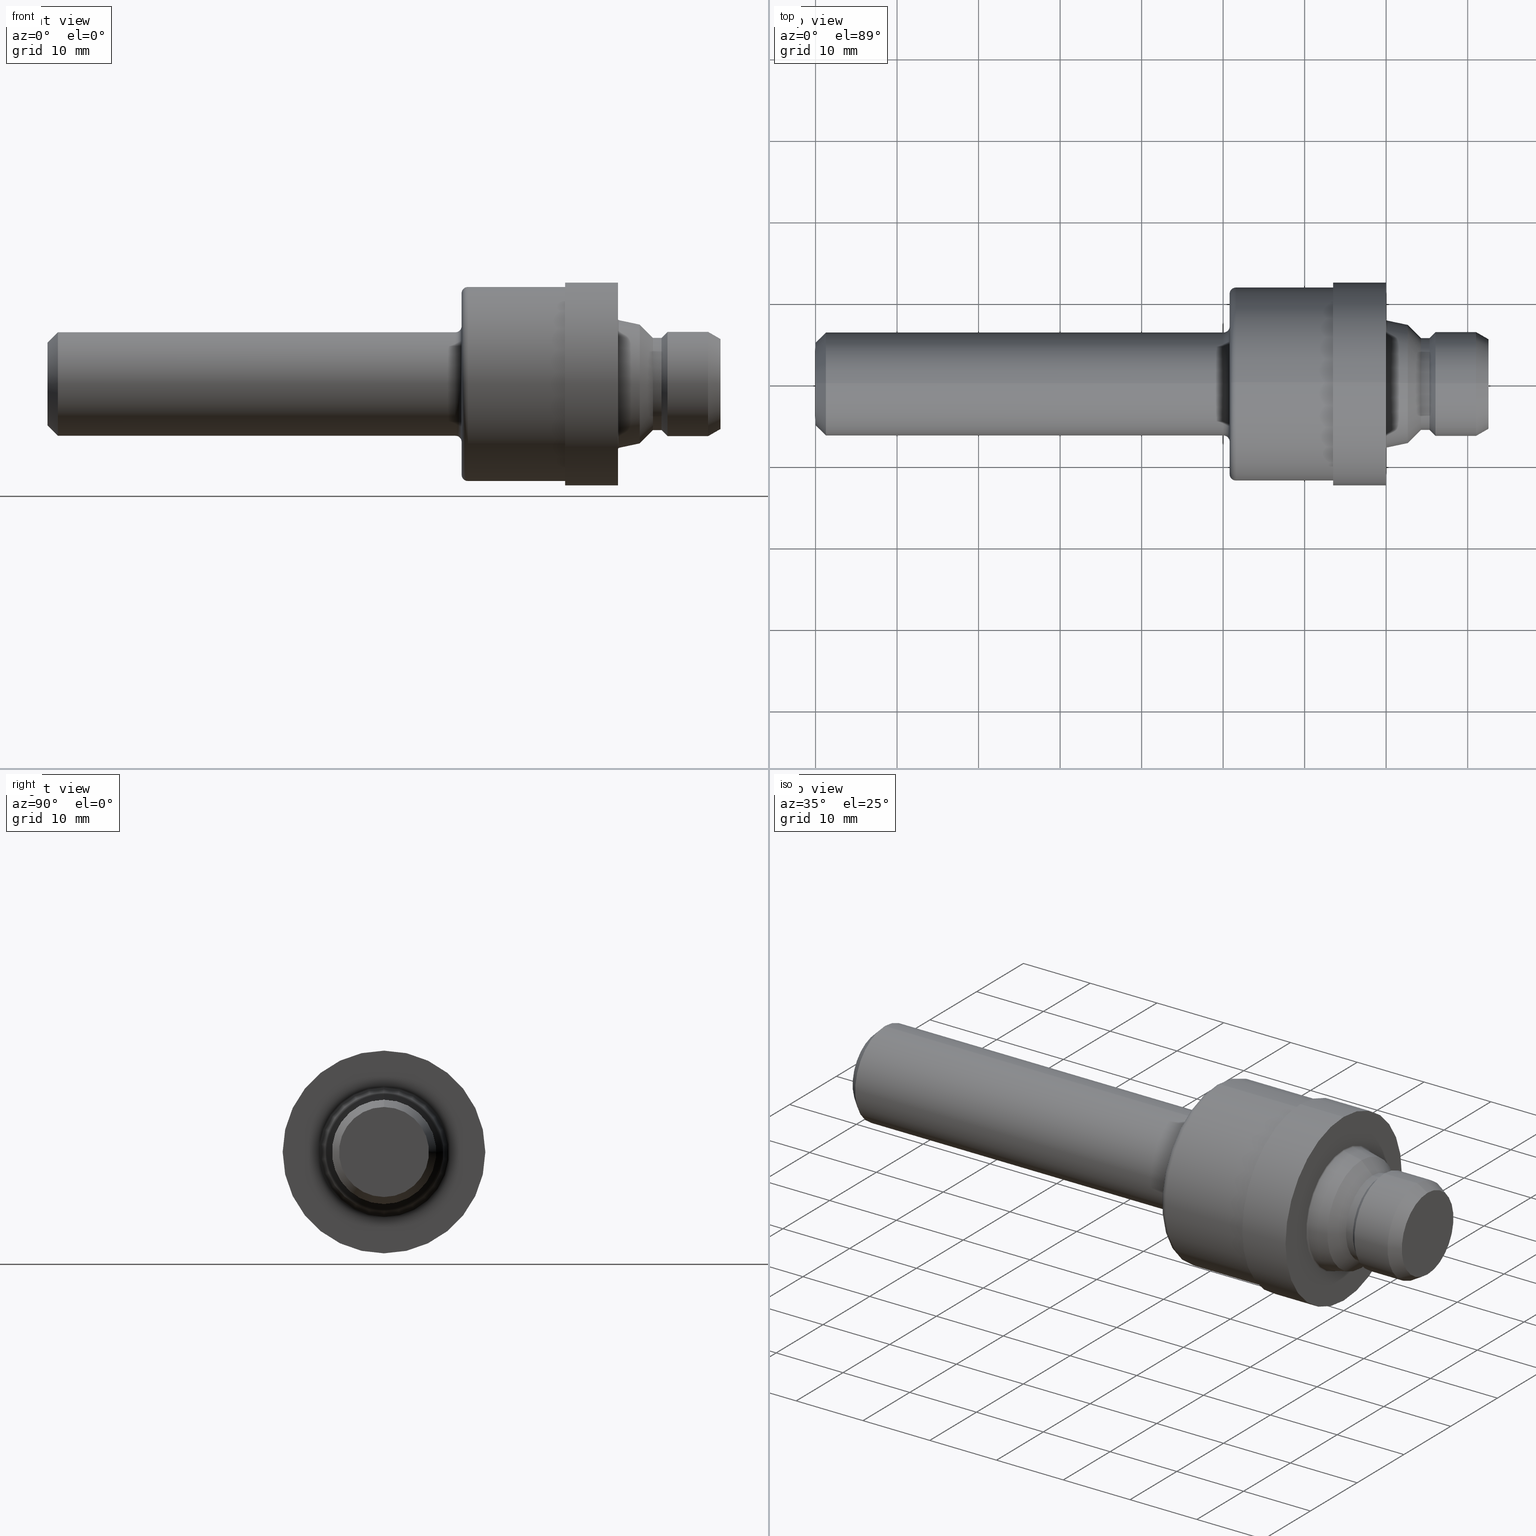
[diagram: canonical four-view strip — front | top / right | iso, engineering-drawing reading convention]
A machine part, canonical four-view strip (front | top / right | iso — engineering-drawing reading convention). The complete STEP part file that produces these views, byte-faithful:
ISO-10303-21;
HEADER;
FILE_DESCRIPTION (( 'STEP AP214' ),
    '1' );
FILE_NAME ('MS16142-6S-SolidModel.STEP',
    '2018-06-22T20:24:38',
    ( '' ),
    ( '' ),
    'SwSTEP 2.0',
    'SolidWorks 2018',
    '' );
FILE_SCHEMA (( 'AUTOMOTIVE_DESIGN' ));
ENDSEC;

DATA;
#1 = CYLINDRICAL_SURFACE ( 'NONE', #606, 0.2225000000000000033 ) ;
#2 = CARTESIAN_POINT ( 'NONE',  ( 2.924431561024649184, 0.0000000000000000000, 0.0000000000000000000 ) ) ;
#3 = CYLINDRICAL_SURFACE ( 'NONE', #660, 0.2520000000000000018 ) ;
#4 = EDGE_LOOP ( 'NONE', ( #155, #598, #457, #435 ) ) ;
#5 = DIRECTION ( 'NONE',  ( -0.8660254037844379305, 6.123233995736778362E-17, -0.5000000000000009992 ) ) ;
#6 = DIRECTION ( 'NONE',  ( 0.0000000000000000000, 0.0000000000000000000, 1.000000000000000000 ) ) ;
#7 = EDGE_CURVE ( 'NONE', #679, #421, #412, .T. ) ;
#8 = AXIS2_PLACEMENT_3D ( 'NONE', #542, #150, #214 ) ;
#9 = PRODUCT_DEFINITION_FORMATION_WITH_SPECIFIED_SOURCE ( 'ANY', '', #791, .NOT_KNOWN. ) ;
#10 = ORIENTED_EDGE ( 'NONE', *, *, #653, .F. ) ;
#11 = VECTOR ( 'NONE', #797, 39.37007874015748143 ) ;
#12 = DIRECTION ( 'NONE',  ( 1.000000000000000000, 0.0000000000000000000, 0.0000000000000000000 ) ) ;
#13 = PRESENTATION_STYLE_ASSIGNMENT (( #513 ) ) ;
#14 = VERTEX_POINT ( 'NONE', #291 ) ;
#15 = CARTESIAN_POINT ( 'NONE',  ( 2.760940662318866590, 3.771756283557232107E-17, -0.3079872732434589255 ) ) ;
#16 = DIRECTION ( 'NONE',  ( -1.000000000000000000, -0.0000000000000000000, -0.0000000000000000000 ) ) ;
#17 = CARTESIAN_POINT ( 'NONE',  ( 1.969999999999999973, 0.0000000000000000000, 0.2799999999999999711 ) ) ;
#18 = AXIS2_PLACEMENT_3D ( 'NONE', #142, #77, #202 ) ;
#19 = ADVANCED_FACE ( 'NONE', ( #64 ), #216, .T. ) ;
#20 = AXIS2_PLACEMENT_3D ( 'NONE', #579, #518, #189 ) ;
#21 = LINE ( 'NONE', #632, #686 ) ;
#22 = AXIS2_PLACEMENT_3D ( 'NONE', #601, #16, #535 ) ;
#23 = VECTOR ( 'NONE', #496, 39.37007874015748854 ) ;
#24 = EDGE_LOOP ( 'NONE', ( #309, #534 ) ) ;
#25 = ADVANCED_FACE ( 'NONE', ( #580 ), #556, .F. ) ;
#26 = EDGE_CURVE ( 'NONE', #43, #363, #40, .T. ) ;
#27 = DIRECTION ( 'NONE',  ( -1.000000000000000000, -0.0000000000000000000, -0.0000000000000000000 ) ) ;
#28 = EDGE_CURVE ( 'NONE', #796, #611, #743, .T. ) ;
#29 = LINE ( 'NONE', #643, #531 ) ;
#30 = ORIENTED_EDGE ( 'NONE', *, *, #269, .F. ) ;
#31 = CONICAL_SURFACE ( 'NONE', #20, 0.2500000000000000000, 0.7853981633974463916 ) ;
#32 = ORIENTED_EDGE ( 'NONE', *, *, #621, .F. ) ;
#33 = ORIENTED_EDGE ( 'NONE', *, *, #115, .F. ) ;
#34 = ORIENTED_EDGE ( 'NONE', *, *, #301, .F. ) ;
#35 = AXIS2_PLACEMENT_3D ( 'NONE', #697, #494, #312 ) ;
#36 = EDGE_CURVE ( 'NONE', #838, #94, #561, .T. ) ;
#37 = DIRECTION ( 'NONE',  ( 0.7071067811865384689, 0.0000000000000000000, -0.7071067811865565655 ) ) ;
#38 = FACE_OUTER_BOUND ( 'NONE', #164, .T. ) ;
#39 = CARTESIAN_POINT ( 'NONE',  ( 2.029999999999999805, 0.0000000000000000000, 0.0000000000000000000 ) ) ;
#40 = LINE ( 'NONE', #491, #391 ) ;
#41 = ORIENTED_EDGE ( 'NONE', *, *, #221, .T. ) ;
#42 = CARTESIAN_POINT ( 'NONE',  ( 2.500000000000000000, 0.0000000000000000000, 0.0000000000000000000 ) ) ;
#43 = VERTEX_POINT ( 'NONE', #558 ) ;
#44 = CIRCLE ( 'NONE', #425, 0.2500000000000000000 ) ;
#45 = AXIS2_PLACEMENT_3D ( 'NONE', #129, #455, #59 ) ;
#46 = CARTESIAN_POINT ( 'NONE',  ( 2.500000000000000000, 5.737470254005350013E-17, -0.4685000000000000830 ) ) ;
#47 = PRODUCT_RELATED_PRODUCT_CATEGORY ( 'part', '', ( #791 ) ) ;
#48 = DIRECTION ( 'NONE',  ( 0.0000000000000000000, 0.0000000000000000000, -1.000000000000000000 ) ) ;
#49 = CARTESIAN_POINT ( 'NONE',  ( 2.500000000000000000, 0.0000000000000000000, 0.4894999999999999907 ) ) ;
#50 = ORIENTED_EDGE ( 'NONE', *, *, #563, .T. ) ;
#51 = TOROIDAL_SURFACE ( 'NONE', #152, 0.3153233802489626703, 0.007500000000000221767 ) ;
#52 = DIRECTION ( 'NONE',  ( 0.0000000000000000000, 0.0000000000000000000, 1.000000000000000000 ) ) ;
#53 = ORIENTED_EDGE ( 'NONE', *, *, #7, .T. ) ;
#54 = DIRECTION ( 'NONE',  ( -1.000000000000000000, -0.0000000000000000000, -0.0000000000000000000 ) ) ;
#55 = DIRECTION ( 'NONE',  ( 0.0000000000000000000, 0.0000000000000000000, 1.000000000000000000 ) ) ;
#56 =( LENGTH_UNIT ( ) NAMED_UNIT ( * ) SI_UNIT ( $, .METRE. ) );
#57 = DIRECTION ( 'NONE',  ( -1.000000000000000000, -0.0000000000000000000, -0.0000000000000000000 ) ) ;
#58 = DIRECTION ( 'NONE',  ( -1.000000000000000000, -0.0000000000000000000, -0.0000000000000000000 ) ) ;
#59 = DIRECTION ( 'NONE',  ( 0.0000000000000000000, -1.224646799147356905E-16, 1.000000000000000000 ) ) ;
#60 = AXIS2_PLACEMENT_3D ( 'NONE', #197, #586, #527 ) ;
#61 = CARTESIAN_POINT ( 'NONE',  ( 3.189999999999999947, 3.086109933851330028E-17, -0.2520000000000000018 ) ) ;
#62 = LINE ( 'NONE', #212, #742 ) ;
#63 = DIRECTION ( 'NONE',  ( 0.0000000000000000000, 0.0000000000000000000, 1.000000000000000000 ) ) ;
#64 = FACE_OUTER_BOUND ( 'NONE', #177, .T. ) ;
#65 = ORIENTED_EDGE ( 'NONE', *, *, #526, .T. ) ;
#66 = DIRECTION ( 'NONE',  ( -0.0000000000000000000, 1.000000000000000000, 1.224646799147353207E-16 ) ) ;
#67 = AXIS2_PLACEMENT_3D ( 'NONE', #779, #394, #644 ) ;
#68 = UNCERTAINTY_MEASURE_WITH_UNIT (LENGTH_MEASURE( 1.000000000000000082E-05 ), #786, 'distance_accuracy_value', 'NONE');
#69 = AXIS2_PLACEMENT_3D ( 'NONE', #274, #205, #539 ) ;
#70 = DIRECTION ( 'NONE',  ( 0.0000000000000000000, 0.0000000000000000000, 1.000000000000000000 ) ) ;
#71 = VERTEX_POINT ( 'NONE', #96 ) ;
#72 = DIRECTION ( 'NONE',  ( -1.000000000000000000, -0.0000000000000000000, -0.0000000000000000000 ) ) ;
#73 = EDGE_CURVE ( 'NONE', #838, #555, #193, .T. ) ;
#74 = CARTESIAN_POINT ( 'NONE',  ( 2.029999999999999805, 0.0000000000000000000, 0.0000000000000000000 ) ) ;
#75 = ORIENTED_EDGE ( 'NONE', *, *, #408, .F. ) ;
#76 = CARTESIAN_POINT ( 'NONE',  ( 2.924431561024649184, 2.724839128102861015E-17, -0.2225000000000000033 ) ) ;
#77 = DIRECTION ( 'NONE',  ( -1.000000000000000000, -0.0000000000000000000, -0.0000000000000000000 ) ) ;
#78 = ORIENTED_EDGE ( 'NONE', *, *, #576, .F. ) ;
#79 = ORIENTED_EDGE ( 'NONE', *, *, #322, .T. ) ;
#80 = DIRECTION ( 'NONE',  ( -1.000000000000000000, -0.0000000000000000000, -0.0000000000000000000 ) ) ;
#81 = CARTESIAN_POINT ( 'NONE',  ( 0.0000000000000000000, 5.737470254005348781E-17, -0.4684999999999999165 ) ) ;
#82 = EDGE_CURVE ( 'NONE', #722, #591, #721, .T. ) ;
#83 = AXIS2_PLACEMENT_3D ( 'NONE', #700, #315, #770 ) ;
#84 = DIRECTION ( 'NONE',  ( 0.0000000000000000000, 0.0000000000000000000, -1.000000000000000000 ) ) ;
#85 = CYLINDRICAL_SURFACE ( 'NONE', #331, 0.2500000000000000000 ) ;
#86 = FACE_OUTER_BOUND ( 'NONE', #232, .T. ) ;
#87 = ADVANCED_FACE ( 'NONE', ( #689 ), #3, .T. ) ;
#88 = ORIENTED_EDGE ( 'NONE', *, *, #669, .F. ) ;
#89 = EDGE_LOOP ( 'NONE', ( #180, #825, #138, #285 ) ) ;
#90 = EDGE_CURVE ( 'NONE', #796, #148, #168, .T. ) ;
#91 = AXIS2_PLACEMENT_3D ( 'NONE', #245, #801, #240 ) ;
#92 = ORIENTED_EDGE ( 'NONE', *, *, #73, .F. ) ;
#93 = ORIENTED_EDGE ( 'NONE', *, *, #760, .F. ) ;
#94 = VERTEX_POINT ( 'NONE', #757 ) ;
#95 = CIRCLE ( 'NONE', #685, 0.02999999999999998848 ) ;
#96 = CARTESIAN_POINT ( 'NONE',  ( 0.05000000000000000278, 3.061616997868383018E-17, -0.2500000000000000000 ) ) ;
#97 = ORIENTED_EDGE ( 'NONE', *, *, #238, .T. ) ;
#98 = EDGE_CURVE ( 'NONE', #236, #591, #347, .T. ) ;
#99 = CONICAL_SURFACE ( 'NONE', #69, 0.2173589838486224002, 0.5235987755983001479 ) ;
#100 = CARTESIAN_POINT ( 'NONE',  ( 2.859999999999999876, 0.0000000000000000000, 0.2869315610246476189 ) ) ;
#101 = FACE_OUTER_BOUND ( 'NONE', #261, .T. ) ;
#102 = AXIS2_PLACEMENT_3D ( 'NONE', #724, #399, #654 ) ;
#103 = ORIENTED_EDGE ( 'NONE', *, *, #621, .T. ) ;
#104 = ORIENTED_EDGE ( 'NONE', *, *, #238, .F. ) ;
#105 = CARTESIAN_POINT ( 'NONE',  ( 0.0000000000000000000, 0.0000000000000000000, 0.0000000000000000000 ) ) ;
#106 = ORIENTED_EDGE ( 'NONE', *, *, #541, .F. ) ;
#107 = DIRECTION ( 'NONE',  ( 0.0000000000000000000, 0.0000000000000000000, 1.000000000000000000 ) ) ;
#108 = AXIS2_PLACEMENT_3D ( 'NONE', #516, #57, #451 ) ;
#109 = VERTEX_POINT ( 'NONE', #623 ) ;
#110 = AXIS2_PLACEMENT_3D ( 'NONE', #528, #72, #656 ) ;
#111 = CONICAL_SURFACE ( 'NONE', #687, 0.2869315610246476189, 0.2094395102393178942 ) ;
#112 = DIRECTION ( 'NONE',  ( 0.0000000000000000000, 0.0000000000000000000, 1.000000000000000000 ) ) ;
#113 = VECTOR ( 'NONE', #771, 39.37007874015748143 ) ;
#114 = VERTEX_POINT ( 'NONE', #820 ) ;
#115 = EDGE_CURVE ( 'NONE', #194, #363, #544, .T. ) ;
#116 = DIRECTION ( 'NONE',  ( -1.000000000000000000, -0.0000000000000000000, -0.0000000000000000000 ) ) ;
#117 = VECTOR ( 'NONE', #834, 39.37007874015748854 ) ;
#118 = DIRECTION ( 'NONE',  ( -1.000000000000000000, -0.0000000000000000000, -0.0000000000000000000 ) ) ;
#119 = CARTESIAN_POINT ( 'NONE',  ( 0.0000000000000000000, 0.0000000000000000000, 0.0000000000000000000 ) ) ;
#120 = DIRECTION ( 'NONE',  ( -1.000000000000000000, -0.0000000000000000000, -0.0000000000000000000 ) ) ;
#121 = CIRCLE ( 'NONE', #738, 0.2520000000000000018 ) ;
#122 = DIRECTION ( 'NONE',  ( -1.000000000000000000, -0.0000000000000000000, -0.0000000000000000000 ) ) ;
#123 = ADVANCED_FACE ( 'NONE', ( #524 ), #486, .T. ) ;
#124 = AXIS2_PLACEMENT_3D ( 'NONE', #119, #567, #175 ) ;
#125 = SURFACE_SIDE_STYLE ('',( #374 ) ) ;
#126 = DIRECTION ( 'NONE',  ( -1.000000000000000000, -0.0000000000000000000, -0.0000000000000000000 ) ) ;
#127 = PLANE ( 'NONE',  #557 ) ;
#128 = ORIENTED_EDGE ( 'NONE', *, *, #783, .F. ) ;
#129 = CARTESIAN_POINT ( 'NONE',  ( 2.762499999999999734, 3.861597683182158394E-17, -0.3153233802489626703 ) ) ;
#130 = EDGE_LOOP ( 'NONE', ( #613, #402 ) ) ;
#131 = CARTESIAN_POINT ( 'NONE',  ( 2.859999999999999876, 0.0000000000000000000, 0.2869315610246476189 ) ) ;
#132 = CARTESIAN_POINT ( 'NONE',  ( 2.754999999999999449, 0.4894999999999999907, 0.0000000000000000000 ) ) ;
#133 = PLANE ( 'NONE',  #640 ) ;
#134 = LINE ( 'NONE', #439, #346 ) ;
#135 = VERTEX_POINT ( 'NONE', #625 ) ;
#136 = DIRECTION ( 'NONE',  ( -1.000000000000000000, -0.0000000000000000000, -0.0000000000000000000 ) ) ;
#137 = CIRCLE ( 'NONE', #253, 0.4894999999999999907 ) ;
#138 = ORIENTED_EDGE ( 'NONE', *, *, #98, .T. ) ;
#139 = CARTESIAN_POINT ( 'NONE',  ( 3.189999999999999947, 0.0000000000000000000, 0.2520000000000000018 ) ) ;
#140 = AXIS2_PLACEMENT_3D ( 'NONE', #571, #511, #711 ) ;
#141 =( LENGTH_UNIT ( ) NAMED_UNIT ( * ) SI_UNIT ( $, .METRE. ) );
#142 = CARTESIAN_POINT ( 'NONE',  ( 0.0000000000000000000, 0.0000000000000000000, 0.0000000000000000000 ) ) ;
#143 = VECTOR ( 'NONE', #403, 39.37007874015748143 ) ;
#144 = APPLICATION_CONTEXT ( 'automotive_design' ) ;
#145 = DIRECTION ( 'NONE',  ( 0.0000000000000000000, 0.0000000000000000000, 1.000000000000000000 ) ) ;
#146 = DIRECTION ( 'NONE',  ( -1.000000000000000000, -0.0000000000000000000, -0.0000000000000000000 ) ) ;
#147 = EDGE_CURVE ( 'NONE', #568, #497, #655, .T. ) ;
#148 = VERTEX_POINT ( 'NONE', #170 ) ;
#149 = ADVANCED_FACE ( 'NONE', ( #333 ), #811, .T. ) ;
#150 = DIRECTION ( 'NONE',  ( -1.000000000000000000, -0.0000000000000000000, -0.0000000000000000000 ) ) ;
#151 = DIRECTION ( 'NONE',  ( 0.0000000000000000000, 0.0000000000000000000, -1.000000000000000000 ) ) ;
#152 = AXIS2_PLACEMENT_3D ( 'NONE', #386, #262, #324 ) ;
#153 = FACE_OUTER_BOUND ( 'NONE', #492, .T. ) ;
#155 = ORIENTED_EDGE ( 'NONE', *, *, #790, .F. ) ;
#154 = AXIS2_PLACEMENT_3D ( 'NONE', #332, #136, #266 ) ;
#156 = CIRCLE ( 'NONE', #124, 0.2000000000000001776 ) ;
#157 = ORIENTED_EDGE ( 'NONE', *, *, #790, .T. ) ;
#158 = CARTESIAN_POINT ( 'NONE',  ( 0.0000000000000000000, 0.0000000000000000000, 0.0000000000000000000 ) ) ;
#159 = EDGE_CURVE ( 'NONE', #94, #838, #307, .T. ) ;
#160 = LINE ( 'NONE', #661, #658 ) ;
#161 = ADVANCED_FACE ( 'NONE', ( #826 ), #630, .T. ) ;
#162 = AXIS2_PLACEMENT_3D ( 'NONE', #243, #116, #172 ) ;
#163 = ORIENTED_EDGE ( 'NONE', *, *, #447, .F. ) ;
#164 = EDGE_LOOP ( 'NONE', ( #30, #340, #755, #78 ) ) ;
#165 = CARTESIAN_POINT ( 'NONE',  ( 2.029999999999999805, 5.370076214261143632E-17, -0.4385000000000000009 ) ) ;
#166 = PRESENTATION_STYLE_ASSIGNMENT (( #474 ) ) ;
#167 = FACE_OUTER_BOUND ( 'NONE', #816, .T. ) ;
#168 = CIRCLE ( 'NONE', #614, 0.4684999999999999165 ) ;
#169 = ORIENTED_EDGE ( 'NONE', *, *, #828, .F. ) ;
#170 = CARTESIAN_POINT ( 'NONE',  ( 2.029999999999999805, 0.0000000000000000000, 0.4684999999999999165 ) ) ;
#171 = EDGE_CURVE ( 'NONE', #224, #114, #156, .T. ) ;
#172 = DIRECTION ( 'NONE',  ( 0.0000000000000000000, 0.0000000000000000000, 1.000000000000000000 ) ) ;
#173 = AXIS2_PLACEMENT_3D ( 'NONE', #840, #515, #639 ) ;
#174 = FACE_OUTER_BOUND ( 'NONE', #582, .T. ) ;
#175 = DIRECTION ( 'NONE',  ( 0.0000000000000000000, 0.0000000000000000000, 1.000000000000000000 ) ) ;
#176 = CARTESIAN_POINT ( 'NONE',  ( 0.0000000000000000000, 0.0000000000000000000, 0.0000000000000000000 ) ) ;
#177 = EDGE_LOOP ( 'NONE', ( #604, #683, #708, #429 ) ) ;
#178 = DIRECTION ( 'NONE',  ( 1.000000000000000000, 0.0000000000000000000, 0.0000000000000000000 ) ) ;
#179 = COLOUR_RGB ( '',0.7529411764705882248, 0.7529411764705882248, 0.7529411764705882248 ) ;
#180 = ORIENTED_EDGE ( 'NONE', *, *, #226, .F. ) ;
#181 = ORIENTED_EDGE ( 'NONE', *, *, #692, .F. ) ;
#182 = CARTESIAN_POINT ( 'NONE',  ( 2.500000000000000000, 0.0000000000000000000, 0.0000000000000000000 ) ) ;
#183 = DIRECTION ( 'NONE',  ( 0.0000000000000000000, 0.0000000000000000000, 1.000000000000000000 ) ) ;
#184 = EDGE_CURVE ( 'NONE', #43, #805, #502, .T. ) ;
#185 = DIRECTION ( 'NONE',  ( 0.0000000000000000000, 0.0000000000000000000, 1.000000000000000000 ) ) ;
#186 = CARTESIAN_POINT ( 'NONE',  ( 0.05000000000000000278, 0.0000000000000000000, -0.2500000000000000000 ) ) ;
#187 = CLOSED_SHELL ( 'NONE', ( #673, #19, #635, #746, #161, #670, #422, #739, #379, #677, #480, #87, #123, #414, #748, #218, #482, #349, #681, #149, #809, #410, #705, #300, #344, #485, #286, #547, #804, #419, #25 ) ) ;
#188 = DIRECTION ( 'NONE',  ( 0.0000000000000000000, 0.0000000000000000000, 1.000000000000000000 ) ) ;
#189 = DIRECTION ( 'NONE',  ( 0.0000000000000000000, 0.0000000000000000000, -1.000000000000000000 ) ) ;
#190 = LINE ( 'NONE', #323, #543 ) ;
#191 = DIRECTION ( 'NONE',  ( 0.0000000000000000000, 0.0000000000000000000, 1.000000000000000000 ) ) ;
#192 = AXIS2_PLACEMENT_3D ( 'NONE', #254, #637, #183 ) ;
#193 = LINE ( 'NONE', #100, #23 ) ;
#194 = VERTEX_POINT ( 'NONE', #49 ) ;
#195 = AXIS2_PLACEMENT_3D ( 'NONE', #2, #393, #523 ) ;
#196 = EDGE_CURVE ( 'NONE', #568, #372, #294, .T. ) ;
#197 = CARTESIAN_POINT ( 'NONE',  ( 2.762499999999999734, 0.0000000000000000000, 0.3153233802489626703 ) ) ;
#198 = ORIENTED_EDGE ( 'NONE', *, *, #147, .F. ) ;
#199 = VECTOR ( 'NONE', #837, 39.37007874015748143 ) ;
#200 = AXIS2_PLACEMENT_3D ( 'NONE', #165, #620, #228 ) ;
#201 = DIRECTION ( 'NONE',  ( -1.000000000000000000, -0.0000000000000000000, -0.0000000000000000000 ) ) ;
#202 = DIRECTION ( 'NONE',  ( 0.0000000000000000000, 0.0000000000000000000, 1.000000000000000000 ) ) ;
#203 = ORIENTED_EDGE ( 'NONE', *, *, #26, .T. ) ;
#204 = CIRCLE ( 'NONE', #108, 0.4385000000000000009 ) ;
#205 = DIRECTION ( 'NONE',  ( -1.000000000000000000, -0.0000000000000000000, -0.0000000000000000000 ) ) ;
#206 = ORIENTED_EDGE ( 'NONE', *, *, #115, .T. ) ;
#207 = ORIENTED_EDGE ( 'NONE', *, *, #587, .F. ) ;
#208 = UNCERTAINTY_MEASURE_WITH_UNIT (LENGTH_MEASURE( 1.000000000000000082E-05 ), #445, 'distance_accuracy_value', 'NONE');
#209 = CARTESIAN_POINT ( 'NONE',  ( 3.189999999999999947, 0.0000000000000000000, 0.0000000000000000000 ) ) ;
#210 = AXIS2_PLACEMENT_3D ( 'NONE', #514, #126, #573 ) ;
#211 = DIRECTION ( 'NONE',  ( -1.000000000000000000, -0.0000000000000000000, -0.0000000000000000000 ) ) ;
#212 = CARTESIAN_POINT ( 'NONE',  ( 0.0000000000000000000, 0.0000000000000000000, 0.2520000000000000018 ) ) ;
#213 = CARTESIAN_POINT ( 'NONE',  ( 2.000000000000000000, 0.2799999999999999711, 0.0000000000000000000 ) ) ;
#214 = DIRECTION ( 'NONE',  ( 0.0000000000000000000, 0.0000000000000000000, 1.000000000000000000 ) ) ;
#215 = CIRCLE ( 'NONE', #45, 0.007500000000000193144 ) ;
#216 = CYLINDRICAL_SURFACE ( 'NONE', #297, 0.2500000000000000000 ) ;
#217 = ORIENTED_EDGE ( 'NONE', *, *, #716, .T. ) ;
#218 = ADVANCED_FACE ( 'NONE', ( #787 ), #396, .T. ) ;
#219 = CIRCLE ( 'NONE', #341, 0.2799999999999999711 ) ;
#220 = CARTESIAN_POINT ( 'NONE',  ( 0.0000000000000000000, 0.0000000000000000000, 0.0000000000000000000 ) ) ;
#221 = EDGE_CURVE ( 'NONE', #805, #43, #137, .T. ) ;
#222 = AXIS2_PLACEMENT_3D ( 'NONE', #385, #256, #714 ) ;
#223 = ORIENTED_EDGE ( 'NONE', *, *, #159, .F. ) ;
#224 = VERTEX_POINT ( 'NONE', #636 ) ;
#225 = VERTEX_POINT ( 'NONE', #510 ) ;
#226 = EDGE_CURVE ( 'NONE', #14, #722, #674, .T. ) ;
#227 = EDGE_CURVE ( 'NONE', #664, #225, #219, .T. ) ;
#228 = DIRECTION ( 'NONE',  ( 0.0000000000000000000, -1.224646799147354933E-16, 1.000000000000000000 ) ) ;
#229 = CIRCLE ( 'NONE', #8, 0.3153233802489626703 ) ;
#230 = DIRECTION ( 'NONE',  ( -1.000000000000000000, -0.0000000000000000000, -0.0000000000000000000 ) ) ;
#231 = VECTOR ( 'NONE', #27, 39.37007874015748143 ) ;
#232 = EDGE_LOOP ( 'NONE', ( #75, #553, #506, #756 ) ) ;
#233 = CARTESIAN_POINT ( 'NONE',  ( 2.994499999999999496, 0.0000000000000000000, 0.0000000000000000000 ) ) ;
#234 = STYLED_ITEM ( 'NONE', ( #13 ), #465 ) ;
#235 = AXIS2_PLACEMENT_3D ( 'NONE', #648, #464, #70 ) ;
#236 = VERTEX_POINT ( 'NONE', #382 ) ;
#237 = ORIENTED_EDGE ( 'NONE', *, *, #447, .T. ) ;
#238 = EDGE_CURVE ( 'NONE', #555, #306, #549, .T. ) ;
#239 = DIRECTION ( 'NONE',  ( -1.000000000000000000, -0.0000000000000000000, -0.0000000000000000000 ) ) ;
#240 = DIRECTION ( 'NONE',  ( 0.0000000000000000000, 0.0000000000000000000, 1.000000000000000000 ) ) ;
#241 = EDGE_CURVE ( 'NONE', #14, #236, #726, .T. ) ;
#242 = DIRECTION ( 'NONE',  ( 0.0000000000000000000, 0.0000000000000000000, 1.000000000000000000 ) ) ;
#243 = CARTESIAN_POINT ( 'NONE',  ( 0.0000000000000000000, 0.0000000000000000000, 0.0000000000000000000 ) ) ;
#244 = EDGE_LOOP ( 'NONE', ( #785, #380, #744, #223 ) ) ;
#245 = CARTESIAN_POINT ( 'NONE',  ( 1.969999999999999973, 0.0000000000000000000, 0.0000000000000000000 ) ) ;
#246 = ORIENTED_EDGE ( 'NONE', *, *, #526, .F. ) ;
#247 = CARTESIAN_POINT ( 'NONE',  ( 3.250000000000000000, 0.0000000000000000000, 0.2173589838486224002 ) ) ;
#248 = EDGE_LOOP ( 'NONE', ( #277, #584, #53, #525 ) ) ;
#249 = DIRECTION ( 'NONE',  ( -1.000000000000000000, -0.0000000000000000000, -0.0000000000000000000 ) ) ;
#250 = CARTESIAN_POINT ( 'NONE',  ( 2.994499999999999496, 0.0000000000000000000, 0.0000000000000000000 ) ) ;
#251 = FACE_OUTER_BOUND ( 'NONE', #581, .T. ) ;
#252 = CARTESIAN_POINT ( 'NONE',  ( 1.969999999999999973, 0.0000000000000000000, 0.2500000000000000000 ) ) ;
#253 = AXIS2_PLACEMENT_3D ( 'NONE', #709, #317, #773 ) ;
#254 = CARTESIAN_POINT ( 'NONE',  ( 0.05000000000000000278, 0.0000000000000000000, 0.0000000000000000000 ) ) ;
#255 = CARTESIAN_POINT ( 'NONE',  ( 2.000000000000000000, 0.0000000000000000000, 0.0000000000000000000 ) ) ;
#256 = DIRECTION ( 'NONE',  ( -1.000000000000000000, -0.0000000000000000000, -0.0000000000000000000 ) ) ;
#257 = FACE_OUTER_BOUND ( 'NONE', #248, .T. ) ;
#258 = CONICAL_SURFACE ( 'NONE', #467, 0.2520000000000000018, 0.7853981633974611576 ) ;
#259 = DIRECTION ( 'NONE',  ( -1.000000000000000000, -0.0000000000000000000, -0.0000000000000000000 ) ) ;
#260 = CARTESIAN_POINT ( 'NONE',  ( 2.762499999999999734, 0.0000000000000000000, 0.0000000000000000000 ) ) ;
#261 = EDGE_LOOP ( 'NONE', ( #413, #565, #79, #169 ) ) ;
#262 = DIRECTION ( 'NONE',  ( -1.000000000000000000, -0.0000000000000000000, -0.0000000000000000000 ) ) ;
#263 = ORIENTED_EDGE ( 'NONE', *, *, #424, .T. ) ;
#264 = CARTESIAN_POINT ( 'NONE',  ( 3.189999999999999947, 0.0000000000000000000, 0.0000000000000000000 ) ) ;
#265 = ORIENTED_EDGE ( 'NONE', *, *, #454, .T. ) ;
#266 = DIRECTION ( 'NONE',  ( 0.0000000000000000000, 0.0000000000000000000, 1.000000000000000000 ) ) ;
#267 = ORIENTED_EDGE ( 'NONE', *, *, #311, .T. ) ;
#268 = APPLICATION_CONTEXT ( 'automotive_design' ) ;
#269 = EDGE_CURVE ( 'NONE', #135, #679, #44, .T. ) ;
#270 = AXIS2_PLACEMENT_3D ( 'NONE', #182, #378, #55 ) ;
#271 = ORIENTED_EDGE ( 'NONE', *, *, #73, .T. ) ;
#272 =( NAMED_UNIT ( * ) PLANE_ANGLE_UNIT ( ) SI_UNIT ( $, .RADIAN. ) );
#273 = DIRECTION ( 'NONE',  ( 0.0000000000000000000, 0.0000000000000000000, -1.000000000000000000 ) ) ;
#274 = CARTESIAN_POINT ( 'NONE',  ( 3.250000000000000000, 0.0000000000000000000, 0.0000000000000000000 ) ) ;
#275 = FACE_BOUND ( 'NONE', #352, .T. ) ;
#276 = DIRECTION ( 'NONE',  ( 0.0000000000000000000, 0.0000000000000000000, 1.000000000000000000 ) ) ;
#277 = ORIENTED_EDGE ( 'NONE', *, *, #320, .F. ) ;
#278 = DIRECTION ( 'NONE',  ( 0.0000000000000000000, 0.0000000000000000000, 1.000000000000000000 ) ) ;
#279 = CARTESIAN_POINT ( 'NONE',  ( 2.000000000000000000, 5.553773234133246207E-17, -0.4385000000000000009 ) ) ;
#280 = CIRCLE ( 'NONE', #195, 0.2225000000000000033 ) ;
#281 = EDGE_CURVE ( 'NONE', #722, #750, #29, .T. ) ;
#282 = CIRCLE ( 'NONE', #501, 0.3153233802489626703 ) ;
#283 = CARTESIAN_POINT ( 'NONE',  ( 2.000000000000000000, 3.429011037612588783E-17, -0.2799999999999999711 ) ) ;
#284 = ORIENTED_EDGE ( 'NONE', *, *, #710, .T. ) ;
#285 = ORIENTED_EDGE ( 'NONE', *, *, #82, .F. ) ;
#286 = ADVANCED_FACE ( 'NONE', ( #369, #350 ), #127, .F. ) ;
#287 = EDGE_LOOP ( 'NONE', ( #827, #592, #106, #607 ) ) ;
#288 = PRESENTATION_LAYER_ASSIGNMENT (  '', '', ( #234 ) ) ;
#289 = CIRCLE ( 'NONE', #822, 0.2500000000000000000 ) ;
#290 = AXIS2_PLACEMENT_3D ( 'NONE', #389, #844, #460 ) ;
#291 = CARTESIAN_POINT ( 'NONE',  ( 2.965000000000000302, 2.905474530977095522E-17, 0.2225000000000000033 ) ) ;
#292 = CYLINDRICAL_SURFACE ( 'NONE', #780, 0.4894999999999999907 ) ;
#293 = ORIENTED_EDGE ( 'NONE', *, *, #184, .F. ) ;
#294 = LINE ( 'NONE', #247, #117 ) ;
#295 = DIRECTION ( 'NONE',  ( 0.0000000000000000000, 0.0000000000000000000, -1.000000000000000000 ) ) ;
#296 = EDGE_LOOP ( 'NONE', ( #334, #93, #476, #694 ) ) ;
#297 = AXIS2_PLACEMENT_3D ( 'NONE', #220, #298, #612 ) ;
#298 = DIRECTION ( 'NONE',  ( -1.000000000000000000, -0.0000000000000000000, -0.0000000000000000000 ) ) ;
#299 = CYLINDRICAL_SURFACE ( 'NONE', #817, 0.4684999999999999165 ) ;
#300 = ADVANCED_FACE ( 'NONE', ( #695, #174 ), #133, .F. ) ;
#301 = EDGE_CURVE ( 'NONE', #802, #148, #337, .T. ) ;
#302 = AXIS2_PLACEMENT_3D ( 'NONE', #375, #54, #441 ) ;
#303 = DIRECTION ( 'NONE',  ( 0.0000000000000000000, 0.0000000000000000000, 1.000000000000000000 ) ) ;
#304 = DIRECTION ( 'NONE',  ( 0.0000000000000000000, 0.0000000000000000000, 1.000000000000000000 ) ) ;
#305 = CIRCLE ( 'NONE', #647, 0.2799999999999999711 ) ;
#306 = VERTEX_POINT ( 'NONE', #15 ) ;
#307 = CIRCLE ( 'NONE', #35, 0.2869315610246476189 ) ;
#308 = ORIENTED_EDGE ( 'NONE', *, *, #609, .T. ) ;
#309 = ORIENTED_EDGE ( 'NONE', *, *, #171, .T. ) ;
#310 = CARTESIAN_POINT ( 'NONE',  ( 2.924431561024649184, 0.0000000000000000000, 0.0000000000000000000 ) ) ;
#311 = EDGE_CURVE ( 'NONE', #372, #459, #507, .T. ) ;
#312 = DIRECTION ( 'NONE',  ( 0.0000000000000000000, 0.0000000000000000000, 1.000000000000000000 ) ) ;
#313 = CARTESIAN_POINT ( 'NONE',  ( 2.500000000000000000, 0.0000000000000000000, 0.0000000000000000000 ) ) ;
#314 = FACE_OUTER_BOUND ( 'NONE', #646, .T. ) ;
#315 = DIRECTION ( 'NONE',  ( -1.000000000000000000, -0.0000000000000000000, -0.0000000000000000000 ) ) ;
#316 = DIRECTION ( 'NONE',  ( 0.0000000000000000000, 0.0000000000000000000, -1.000000000000000000 ) ) ;
#317 = DIRECTION ( 'NONE',  ( -1.000000000000000000, -0.0000000000000000000, -0.0000000000000000000 ) ) ;
#318 = EDGE_LOOP ( 'NONE', ( #538, #330, #446, #128 ) ) ;
#319 = FILL_AREA_STYLE_COLOUR ( '', #179 ) ;
#320 = EDGE_CURVE ( 'NONE', #135, #71, #160, .T. ) ;
#321 = DIRECTION ( 'NONE',  ( 0.0000000000000000000, 0.0000000000000000000, 1.000000000000000000 ) ) ;
#322 = EDGE_CURVE ( 'NONE', #148, #622, #680, .T. ) ;
#323 = CARTESIAN_POINT ( 'NONE',  ( 0.0000000000000000000, 0.0000000000000000000, 0.4894999999999999907 ) ) ;
#324 = DIRECTION ( 'NONE',  ( 0.0000000000000000000, 0.0000000000000000000, 1.000000000000000000 ) ) ;
#325 = DIRECTION ( 'NONE',  ( -1.000000000000000000, -0.0000000000000000000, -0.0000000000000000000 ) ) ;
#326 = CARTESIAN_POINT ( 'NONE',  ( 2.924431561024649184, 0.0000000000000000000, 0.2225000000000000033 ) ) ;
#327 = FILL_AREA_STYLE_COLOUR ( '', #520 ) ;
#328 = MECHANICAL_DESIGN_GEOMETRIC_PRESENTATION_REPRESENTATION (  '', ( #234 ), #365 ) ;
#329 = LINE ( 'NONE', #597, #483 ) ;
#330 = ORIENTED_EDGE ( 'NONE', *, *, #760, .T. ) ;
#331 = AXIS2_PLACEMENT_3D ( 'NONE', #532, #120, #188 ) ;
#332 = CARTESIAN_POINT ( 'NONE',  ( 2.965000000000000302, 0.0000000000000000000, 0.0000000000000000000 ) ) ;
#333 = FACE_OUTER_BOUND ( 'NONE', #617, .T. ) ;
#334 = ORIENTED_EDGE ( 'NONE', *, *, #241, .F. ) ;
#335 = PLANE ( 'NONE',  #821 ) ;
#336 = SURFACE_SIDE_STYLE ('',( #345 ) ) ;
#337 = LINE ( 'NONE', #405, #11 ) ;
#338 = CARTESIAN_POINT ( 'NONE',  ( 2.029999999999999805, 0.0000000000000000000, 0.4385000000000000009 ) ) ;
#339 = DIRECTION ( 'NONE',  ( -1.000000000000000000, -0.0000000000000000000, -0.0000000000000000000 ) ) ;
#340 = ORIENTED_EDGE ( 'NONE', *, *, #408, .T. ) ;
#341 = AXIS2_PLACEMENT_3D ( 'NONE', #255, #713, #321 ) ;
#342 = CARTESIAN_POINT ( 'NONE',  ( 1.969999999999999973, 0.0000000000000000000, 0.0000000000000000000 ) ) ;
#343 = EDGE_CURVE ( 'NONE', #701, #796, #832, .T. ) ;
#344 = ADVANCED_FACE ( 'NONE', ( #314 ), #299, .T. ) ;
#345 = SURFACE_STYLE_FILL_AREA ( #727 ) ;
#346 = VECTOR ( 'NONE', #766, 39.37007874015748143 ) ;
#347 = CIRCLE ( 'NONE', #569, 0.2520000000000000018 ) ;
#348 = EDGE_LOOP ( 'NONE', ( #659, #585 ) ) ;
#349 = ADVANCED_FACE ( 'NONE', ( #488 ), #793, .T. ) ;
#350 = FACE_OUTER_BOUND ( 'NONE', #808, .T. ) ;
#351 = EDGE_CURVE ( 'NONE', #591, #236, #121, .T. ) ;
#352 = EDGE_LOOP ( 'NONE', ( #103, #65 ) ) ;
#353 = FACE_OUTER_BOUND ( 'NONE', #89, .T. ) ;
#354 = ORIENTED_EDGE ( 'NONE', *, *, #752, .F. ) ;
#355 = EDGE_LOOP ( 'NONE', ( #10, #32, #671, #97 ) ) ;
#356 = DIRECTION ( 'NONE',  ( -1.000000000000000000, -0.0000000000000000000, -0.0000000000000000000 ) ) ;
#357 = EDGE_CURVE ( 'NONE', #148, #796, #475, .T. ) ;
#358 = ORIENTED_EDGE ( 'NONE', *, *, #710, .F. ) ;
#359 = EDGE_CURVE ( 'NONE', #14, #416, #814, .T. ) ;
#360 = DIRECTION ( 'NONE',  ( -1.000000000000000000, -0.0000000000000000000, -0.0000000000000000000 ) ) ;
#361 = FACE_OUTER_BOUND ( 'NONE', #287, .T. ) ;
#362 = VECTOR ( 'NONE', #37, 39.37007874015748143 ) ;
#363 = VERTEX_POINT ( 'NONE', #398 ) ;
#364 = CARTESIAN_POINT ( 'NONE',  ( 3.250000000000000000, 0.0000000000000000000, 0.0000000000000000000 ) ) ;
#365 =( GEOMETRIC_REPRESENTATION_CONTEXT ( 3 ) GLOBAL_UNCERTAINTY_ASSIGNED_CONTEXT ( ( #208 ) ) GLOBAL_UNIT_ASSIGNED_CONTEXT ( ( #445, #836, #381 ) ) REPRESENTATION_CONTEXT ( 'NONE', 'WORKASPACE' ) );
#366 = AXIS2_PLACEMENT_3D ( 'NONE', #260, #578, #63 ) ;
#367 = EDGE_CURVE ( 'NONE', #109, #555, #633, .T. ) ;
#368 = CARTESIAN_POINT ( 'NONE',  ( 3.250000000000000000, 0.0000000000000000000, 0.0000000000000000000 ) ) ;
#369 = FACE_BOUND ( 'NONE', #130, .T. ) ;
#370 = DIRECTION ( 'NONE',  ( -1.000000000000000000, -0.0000000000000000000, -0.0000000000000000000 ) ) ;
#371 = DIRECTION ( 'NONE',  ( 0.0000000000000000000, 0.0000000000000000000, 1.000000000000000000 ) ) ;
#372 = VERTEX_POINT ( 'NONE', #139 ) ;
#373 = CARTESIAN_POINT ( 'NONE',  ( 0.05000000000000000278, 3.061616997868383018E-17, 0.2500000000000000000 ) ) ;
#374 = SURFACE_STYLE_FILL_AREA ( #712 ) ;
#375 = CARTESIAN_POINT ( 'NONE',  ( 0.0000000000000000000, 0.0000000000000000000, 0.0000000000000000000 ) ) ;
#376 = EDGE_LOOP ( 'NONE', ( #207, #545, #554, #163 ) ) ;
#377 = ORIENTED_EDGE ( 'NONE', *, *, #147, .T. ) ;
#378 = DIRECTION ( 'NONE',  ( -1.000000000000000000, -0.0000000000000000000, -0.0000000000000000000 ) ) ;
#379 = ADVANCED_FACE ( 'NONE', ( #615 ), #792, .T. ) ;
#380 = ORIENTED_EDGE ( 'NONE', *, *, #783, .T. ) ;
#381 =( NAMED_UNIT ( * ) SI_UNIT ( $, .STERADIAN. ) SOLID_ANGLE_UNIT ( ) );
#382 = CARTESIAN_POINT ( 'NONE',  ( 2.994499999999999496, 0.0000000000000000000, 0.2520000000000000018 ) ) ;
#383 = AXIS2_PLACEMENT_3D ( 'NONE', #453, #58, #517 ) ;
#384 = DIRECTION ( 'NONE',  ( 0.0000000000000000000, 0.0000000000000000000, -1.000000000000000000 ) ) ;
#385 = CARTESIAN_POINT ( 'NONE',  ( 0.0000000000000000000, 0.0000000000000000000, 0.0000000000000000000 ) ) ;
#386 = CARTESIAN_POINT ( 'NONE',  ( 2.762499999999999734, 0.0000000000000000000, 0.0000000000000000000 ) ) ;
#387 = LENGTH_MEASURE_WITH_UNIT ( LENGTH_MEASURE( 0.02539999999999999897 ), #519 );
#388 = CIRCLE ( 'NONE', #810, 0.4685000000000000275 ) ;
#389 = CARTESIAN_POINT ( 'NONE',  ( 2.760940662318866590, 0.0000000000000000000, 0.0000000000000000000 ) ) ;
#390 = DIRECTION ( 'NONE',  ( -0.0000000000000000000, 0.0000000000000000000, 1.000000000000000000 ) ) ;
#391 = VECTOR ( 'NONE', #356, 39.37007874015748143 ) ;
#392 = ORIENTED_EDGE ( 'NONE', *, *, #98, .F. ) ;
#393 = DIRECTION ( 'NONE',  ( -1.000000000000000000, -0.0000000000000000000, -0.0000000000000000000 ) ) ;
#394 = DIRECTION ( 'NONE',  ( -1.000000000000000000, 0.0000000000000000000, -0.0000000000000000000 ) ) ;
#395 =( NAMED_UNIT ( * ) SI_UNIT ( $, .STERADIAN. ) SOLID_ANGLE_UNIT ( ) );
#396 = CYLINDRICAL_SURFACE ( 'NONE', #302, 0.2520000000000000018 ) ;
#397 = ADVANCED_BREP_SHAPE_REPRESENTATION ( 'MS16142-6S-SolidModel', ( #465, #762 ), #418 ) ;
#398 = CARTESIAN_POINT ( 'NONE',  ( 2.500000000000000000, 5.994646081826293618E-17, -0.4894999999999999907 ) ) ;
#399 = DIRECTION ( 'NONE',  ( -1.000000000000000000, -0.0000000000000000000, -0.0000000000000000000 ) ) ;
#400 = ORIENTED_EDGE ( 'NONE', *, *, #26, .F. ) ;
#401 = DIRECTION ( 'NONE',  ( 0.0000000000000000000, 0.0000000000000000000, 1.000000000000000000 ) ) ;
#402 = ORIENTED_EDGE ( 'NONE', *, *, #227, .F. ) ;
#403 = DIRECTION ( 'NONE',  ( -1.000000000000000000, -0.0000000000000000000, -0.0000000000000000000 ) ) ;
#404 = CARTESIAN_POINT ( 'NONE',  ( 2.754999999999999449, 3.861597683182158394E-17, -0.3153233802489626703 ) ) ;
#405 = CARTESIAN_POINT ( 'NONE',  ( 0.0000000000000000000, 0.0000000000000000000, 0.4684999999999999165 ) ) ;
#406 = EDGE_CURVE ( 'NONE', #459, #372, #423, .T. ) ;
#407 = CARTESIAN_POINT ( 'NONE',  ( 2.859999999999999876, 0.0000000000000000000, 0.0000000000000000000 ) ) ;
#408 = EDGE_CURVE ( 'NONE', #135, #664, #95, .T. ) ;
#409 = CIRCLE ( 'NONE', #626, 0.02999999999999998848 ) ;
#410 = ADVANCED_FACE ( 'NONE', ( #251, #275 ), #335, .F. ) ;
#411 = CARTESIAN_POINT ( 'NONE',  ( 0.0000000000000000000, 0.0000000000000000000, 0.0000000000000000000 ) ) ;
#412 = LINE ( 'NONE', #550, #231 ) ;
#413 = ORIENTED_EDGE ( 'NONE', *, *, #28, .F. ) ;
#414 = ADVANCED_FACE ( 'NONE', ( #772 ), #718, .F. ) ;
#415 = AXIS2_PLACEMENT_3D ( 'NONE', #707, #841, #384 ) ;
#416 = VERTEX_POINT ( 'NONE', #326 ) ;
#417 = ORIENTED_EDGE ( 'NONE', *, *, #28, .T. ) ;
#418 =( GEOMETRIC_REPRESENTATION_CONTEXT ( 3 ) GLOBAL_UNCERTAINTY_ASSIGNED_CONTEXT ( ( #741 ) ) GLOBAL_UNIT_ASSIGNED_CONTEXT ( ( #583, #723, #395 ) ) REPRESENTATION_CONTEXT ( 'NONE', 'WORKASPACE' ) );
#419 = ADVANCED_FACE ( 'NONE', ( #596 ), #31, .T. ) ;
#420 = EDGE_LOOP ( 'NONE', ( #463, #812, #237, #265 ) ) ;
#421 = VERTEX_POINT ( 'NONE', #458 ) ;
#422 = ADVANCED_FACE ( 'NONE', ( #702 ), #51, .F. ) ;
#423 = CIRCLE ( 'NONE', #645, 0.2520000000000000018 ) ;
#424 = EDGE_CURVE ( 'NONE', #622, #611, #204, .T. ) ;
#425 = AXIS2_PLACEMENT_3D ( 'NONE', #715, #325, #665 ) ;
#426 = ORIENTED_EDGE ( 'NONE', *, *, #343, .F. ) ;
#427 = FACE_OUTER_BOUND ( 'NONE', #355, .T. ) ;
#428 = CIRCLE ( 'NONE', #588, 0.2225000000000000033 ) ;
#429 = ORIENTED_EDGE ( 'NONE', *, *, #7, .F. ) ;
#430 = DIRECTION ( 'NONE',  ( -1.000000000000000000, -0.0000000000000000000, -0.0000000000000000000 ) ) ;
#431 = ORIENTED_EDGE ( 'NONE', *, *, #357, .T. ) ;
#432 = DIRECTION ( 'NONE',  ( 0.0000000000000000000, 0.0000000000000000000, 1.000000000000000000 ) ) ;
#433 = DIRECTION ( 'NONE',  ( 0.0000000000000000000, 0.0000000000000000000, 1.000000000000000000 ) ) ;
#434 = CIRCLE ( 'NONE', #745, 0.2500000000000000000 ) ;
#435 = ORIENTED_EDGE ( 'NONE', *, *, #406, .F. ) ;
#436 = DIRECTION ( 'NONE',  ( -1.000000000000000000, -0.0000000000000000000, -0.0000000000000000000 ) ) ;
#437 = ORIENTED_EDGE ( 'NONE', *, *, #609, .F. ) ;
#438 = DIRECTION ( 'NONE',  ( -1.000000000000000000, -0.0000000000000000000, -0.0000000000000000000 ) ) ;
#439 = CARTESIAN_POINT ( 'NONE',  ( 2.924431561024649184, 0.0000000000000000000, 0.2225000000000000033 ) ) ;
#440 = CARTESIAN_POINT ( 'NONE',  ( 2.029999999999999805, 0.0000000000000000000, 0.0000000000000000000 ) ) ;
#441 = DIRECTION ( 'NONE',  ( 0.0000000000000000000, 0.0000000000000000000, 1.000000000000000000 ) ) ;
#442 = PRODUCT_DEFINITION_SHAPE ( 'NONE', 'NONE',  #813 ) ;
#443 = VECTOR ( 'NONE', #729, 39.37007874015748143 ) ;
#444 = ORIENTED_EDGE ( 'NONE', *, *, #196, .F. ) ;
#445 =( CONVERSION_BASED_UNIT ( 'INCH', #662 ) LENGTH_UNIT ( ) NAMED_UNIT ( #572 ) );
#446 = ORIENTED_EDGE ( 'NONE', *, *, #359, .T. ) ;
#447 = EDGE_CURVE ( 'NONE', #224, #71, #732, .T. ) ;
#448 = CARTESIAN_POINT ( 'NONE',  ( 0.0000000000000000000, 0.0000000000000000000, 0.0000000000000000000 ) ) ;
#449 = DIMENSIONAL_EXPONENTS ( 1.000000000000000000, 0.0000000000000000000, 0.0000000000000000000, 0.0000000000000000000, 0.0000000000000000000, 0.0000000000000000000, 0.0000000000000000000 ) ;
#450 = LINE ( 'NONE', #652, #775 ) ;
#451 = DIRECTION ( 'NONE',  ( 0.0000000000000000000, 0.0000000000000000000, 1.000000000000000000 ) ) ;
#452 = LINE ( 'NONE', #373, #776 ) ;
#453 = CARTESIAN_POINT ( 'NONE',  ( 2.760940662318866590, 0.0000000000000000000, 0.0000000000000000000 ) ) ;
#454 = EDGE_CURVE ( 'NONE', #71, #421, #552, .T. ) ;
#455 = DIRECTION ( 'NONE',  ( -0.0000000000000000000, 1.000000000000000000, 1.224646799147353207E-16 ) ) ;
#456 = ORIENTED_EDGE ( 'NONE', *, *, #90, .F. ) ;
#457 = ORIENTED_EDGE ( 'NONE', *, *, #196, .T. ) ;
#458 = CARTESIAN_POINT ( 'NONE',  ( 0.05000000000000000278, 0.0000000000000000000, 0.2500000000000000000 ) ) ;
#459 = VERTEX_POINT ( 'NONE', #61 ) ;
#460 = DIRECTION ( 'NONE',  ( 0.0000000000000000000, 0.0000000000000000000, 1.000000000000000000 ) ) ;
#461 = ORIENTED_EDGE ( 'NONE', *, *, #653, .T. ) ;
#462 = DIRECTION ( 'NONE',  ( 0.0000000000000000000, -1.224646799147352221E-16, 1.000000000000000000 ) ) ;
#463 = ORIENTED_EDGE ( 'NONE', *, *, #495, .F. ) ;
#464 = DIRECTION ( 'NONE',  ( -1.000000000000000000, -0.0000000000000000000, -0.0000000000000000000 ) ) ;
#465 = MANIFOLD_SOLID_BREP ( '27E8F748-4843-41e7-9E77-F0B3DE211828-GAAFaceID16', #187 ) ;
#466 = CIRCLE ( 'NONE', #110, 0.2173589838486224002 ) ;
#467 = AXIS2_PLACEMENT_3D ( 'NONE', #250, #178, #316 ) ;
#468 = FACE_OUTER_BOUND ( 'NONE', #4, .T. ) ;
#469 = EDGE_LOOP ( 'NONE', ( #377, #157, #765, #444 ) ) ;
#470 = APPLICATION_PROTOCOL_DEFINITION ( 'draft international standard', 'automotive_design', 1998, #268 ) ;
#471 = DIRECTION ( 'NONE',  ( -1.000000000000000000, -0.0000000000000000000, -0.0000000000000000000 ) ) ;
#472 = FACE_OUTER_BOUND ( 'NONE', #749, .T. ) ;
#473 = EDGE_LOOP ( 'NONE', ( #667, #217, #551, #181 ) ) ;
#474 = SURFACE_STYLE_USAGE ( .BOTH. , #336 ) ;
#475 = CIRCLE ( 'NONE', #777, 0.4684999999999999165 ) ;
#476 = ORIENTED_EDGE ( 'NONE', *, *, #82, .T. ) ;
#477 = CARTESIAN_POINT ( 'NONE',  ( 2.965000000000000302, 0.0000000000000000000, -0.2225000000000000033 ) ) ;
#478 = DIRECTION ( 'NONE',  ( 0.0000000000000000000, 0.0000000000000000000, 1.000000000000000000 ) ) ;
#479 = ORIENTED_EDGE ( 'NONE', *, *, #221, .F. ) ;
#480 = ADVANCED_FACE ( 'NONE', ( #353 ), #602, .T. ) ;
#481 = DIRECTION ( 'NONE',  ( -1.000000000000000000, -0.0000000000000000000, -0.0000000000000000000 ) ) ;
#482 = ADVANCED_FACE ( 'NONE', ( #619 ), #258, .T. ) ;
#483 = VECTOR ( 'NONE', #663, 39.37007874015748143 ) ;
#484 = ORIENTED_EDGE ( 'NONE', *, *, #322, .F. ) ;
#485 = ADVANCED_FACE ( 'NONE', ( #101 ), #799, .T. ) ;
#486 = CONICAL_SURFACE ( 'NONE', #751, 0.2173589838486224002, 0.5235987755983001479 ) ;
#487 = EDGE_LOOP ( 'NONE', ( #767, #778, #763, #34 ) ) ;
#488 = FACE_OUTER_BOUND ( 'NONE', #318, .T. ) ;
#489 = AXIS2_PLACEMENT_3D ( 'NONE', #158, #618, #295 ) ;
#490 = PRODUCT_DEFINITION_CONTEXT ( 'detailed design', #144, 'design' ) ;
#491 = CARTESIAN_POINT ( 'NONE',  ( 0.0000000000000000000, 5.994646081826293618E-17, -0.4894999999999999907 ) ) ;
#492 = EDGE_LOOP ( 'NONE', ( #400, #735, #675, #437 ) ) ;
#493 = ORIENTED_EDGE ( 'NONE', *, *, #828, .T. ) ;
#494 = DIRECTION ( 'NONE',  ( -1.000000000000000000, -0.0000000000000000000, -0.0000000000000000000 ) ) ;
#495 = EDGE_CURVE ( 'NONE', #114, #421, #452, .T. ) ;
#496 = DIRECTION ( 'NONE',  ( -0.9781476007338059109, 0.0000000000000000000, 0.2079116908177577328 ) ) ;
#497 = VERTEX_POINT ( 'NONE', #699 ) ;
#498 = DIRECTION ( 'NONE',  ( -1.000000000000000000, -0.0000000000000000000, -0.0000000000000000000 ) ) ;
#499 = CIRCLE ( 'NONE', #270, 0.4685000000000000275 ) ;
#500 = DIRECTION ( 'NONE',  ( -1.000000000000000000, -0.0000000000000000000, -0.0000000000000000000 ) ) ;
#501 = AXIS2_PLACEMENT_3D ( 'NONE', #508, #438, #831 ) ;
#502 = CIRCLE ( 'NONE', #83, 0.4894999999999999907 ) ;
#503 = ORIENTED_EDGE ( 'NONE', *, *, #159, .T. ) ;
#504 = STYLED_ITEM ( 'NONE', ( #166 ), #397 ) ;
#505 = DIRECTION ( 'NONE',  ( 0.0000000000000000000, 0.0000000000000000000, 1.000000000000000000 ) ) ;
#506 = ORIENTED_EDGE ( 'NONE', *, *, #576, .T. ) ;
#507 = CIRCLE ( 'NONE', #599, 0.2520000000000000018 ) ;
#508 = CARTESIAN_POINT ( 'NONE',  ( 2.754999999999999449, 0.0000000000000000000, 0.0000000000000000000 ) ) ;
#509 = PRODUCT_CONTEXT ( 'NONE', #268, 'mechanical' ) ;
#510 = CARTESIAN_POINT ( 'NONE',  ( 2.000000000000000000, 0.0000000000000000000, 0.2799999999999999711 ) ) ;
#511 = DIRECTION ( 'NONE',  ( -1.000000000000000000, -0.0000000000000000000, -0.0000000000000000000 ) ) ;
#512 = ORIENTED_EDGE ( 'NONE', *, *, #424, .F. ) ;
#513 = SURFACE_STYLE_USAGE ( .BOTH. , #125 ) ;
#514 = CARTESIAN_POINT ( 'NONE',  ( 2.965000000000000302, 0.0000000000000000000, 0.0000000000000000000 ) ) ;
#515 = DIRECTION ( 'NONE',  ( 1.000000000000000000, 0.0000000000000000000, 0.0000000000000000000 ) ) ;
#516 = CARTESIAN_POINT ( 'NONE',  ( 2.000000000000000000, 0.0000000000000000000, 0.0000000000000000000 ) ) ;
#517 = DIRECTION ( 'NONE',  ( 0.0000000000000000000, 0.0000000000000000000, 1.000000000000000000 ) ) ;
#518 = DIRECTION ( 'NONE',  ( 1.000000000000000000, 0.0000000000000000000, 0.0000000000000000000 ) ) ;
#519 =( LENGTH_UNIT ( ) NAMED_UNIT ( * ) SI_UNIT ( $, .METRE. ) );
#520 = COLOUR_RGB ( '',0.7529411764705882248, 0.7529411764705882248, 0.7529411764705882248 ) ;
#521 = CARTESIAN_POINT ( 'NONE',  ( 1.969999999999999973, 3.429011037612588783E-17, -0.2799999999999999711 ) ) ;
#522 = FACE_OUTER_BOUND ( 'NONE', #376, .T. ) ;
#523 = DIRECTION ( 'NONE',  ( 0.0000000000000000000, 0.0000000000000000000, 1.000000000000000000 ) ) ;
#524 = FACE_OUTER_BOUND ( 'NONE', #469, .T. ) ;
#525 = ORIENTED_EDGE ( 'NONE', *, *, #454, .F. ) ;
#526 = EDGE_CURVE ( 'NONE', #706, #109, #282, .T. ) ;
#527 = DIRECTION ( 'NONE',  ( 0.0000000000000000000, 0.0000000000000000000, -1.000000000000000000 ) ) ;
#528 = CARTESIAN_POINT ( 'NONE',  ( 3.250000000000000000, 0.0000000000000000000, 0.0000000000000000000 ) ) ;
#529 = CARTESIAN_POINT ( 'NONE',  ( 0.0000000000000000000, 0.0000000000000000000, 0.2225000000000000033 ) ) ;
#530 = EDGE_LOOP ( 'NONE', ( #651, #788, #104, #92 ) ) ;
#531 = VECTOR ( 'NONE', #259, 39.37007874015748143 ) ;
#532 = CARTESIAN_POINT ( 'NONE',  ( 0.0000000000000000000, 0.0000000000000000000, 0.0000000000000000000 ) ) ;
#533 = AXIS2_PLACEMENT_3D ( 'NONE', #753, #360, #819 ) ;
#534 = ORIENTED_EDGE ( 'NONE', *, *, #587, .T. ) ;
#535 = DIRECTION ( 'NONE',  ( 0.0000000000000000000, 0.0000000000000000000, 1.000000000000000000 ) ) ;
#536 = VECTOR ( 'NONE', #642, 39.37007874015748143 ) ;
#537 = CARTESIAN_POINT ( 'NONE',  ( 0.0000000000000000000, 0.0000000000000000000, 0.0000000000000000000 ) ) ;
#538 = ORIENTED_EDGE ( 'NONE', *, *, #281, .F. ) ;
#539 = DIRECTION ( 'NONE',  ( 0.0000000000000000000, 0.0000000000000000000, 1.000000000000000000 ) ) ;
#540 = DIRECTION ( 'NONE',  ( 0.0000000000000000000, -1.000000000000000000, 0.0000000000000000000 ) ) ;
#541 = EDGE_CURVE ( 'NONE', #416, #750, #428, .T. ) ;
#542 = CARTESIAN_POINT ( 'NONE',  ( 2.754999999999999449, 0.0000000000000000000, 0.0000000000000000000 ) ) ;
#543 = VECTOR ( 'NONE', #830, 39.37007874015748143 ) ;
#544 = CIRCLE ( 'NONE', #704, 0.4894999999999999907 ) ;
#545 = ORIENTED_EDGE ( 'NONE', *, *, #495, .T. ) ;
#546 = AXIS2_PLACEMENT_3D ( 'NONE', #440, #122, #570 ) ;
#547 = ADVANCED_FACE ( 'NONE', ( #86 ), #577, .F. ) ;
#548 = PRESENTATION_LAYER_ASSIGNMENT (  '', '', ( #504 ) ) ;
#549 = CIRCLE ( 'NONE', #383, 0.3079872732434589255 ) ;
#550 = CARTESIAN_POINT ( 'NONE',  ( 0.0000000000000000000, 0.0000000000000000000, 0.2500000000000000000 ) ) ;
#551 = ORIENTED_EDGE ( 'NONE', *, *, #36, .F. ) ;
#552 = CIRCLE ( 'NONE', #192, 0.2500000000000000000 ) ;
#553 = ORIENTED_EDGE ( 'NONE', *, *, #728, .F. ) ;
#554 = ORIENTED_EDGE ( 'NONE', *, *, #747, .T. ) ;
#555 = VERTEX_POINT ( 'NONE', #764 ) ;
#556 = PLANE ( 'NONE',  #489 ) ;
#557 = AXIS2_PLACEMENT_3D ( 'NONE', #213, #740, #151 ) ;
#558 = CARTESIAN_POINT ( 'NONE',  ( 2.754999999999999893, 5.994646081826293618E-17, -0.4894999999999999907 ) ) ;
#559 = CARTESIAN_POINT ( 'NONE',  ( 2.994499999999999496, 0.0000000000000000000, -0.2520000000000000018 ) ) ;
#560 = CIRCLE ( 'NONE', #725, 0.2000000000000001776 ) ;
#561 = CIRCLE ( 'NONE', #533, 0.2869315610246476189 ) ;
#562 = ORIENTED_EDGE ( 'NONE', *, *, #406, .T. ) ;
#563 = EDGE_CURVE ( 'NONE', #372, #236, #62, .T. ) ;
#564 = DIRECTION ( 'NONE',  ( -1.000000000000000000, -0.0000000000000000000, -0.0000000000000000000 ) ) ;
#565 = ORIENTED_EDGE ( 'NONE', *, *, #90, .T. ) ;
#566 = CARTESIAN_POINT ( 'NONE',  ( 3.250000000000000000, 0.0000000000000000000, 0.2173589838486224002 ) ) ;
#567 = DIRECTION ( 'NONE',  ( -1.000000000000000000, -0.0000000000000000000, -0.0000000000000000000 ) ) ;
#568 = VERTEX_POINT ( 'NONE', #566 ) ;
#569 = AXIS2_PLACEMENT_3D ( 'NONE', #233, #688, #304 ) ;
#570 = DIRECTION ( 'NONE',  ( 0.0000000000000000000, 0.0000000000000000000, 1.000000000000000000 ) ) ;
#571 = CARTESIAN_POINT ( 'NONE',  ( 2.924431561024649184, 0.0000000000000000000, 0.0000000000000000000 ) ) ;
#572 = DIMENSIONAL_EXPONENTS ( 1.000000000000000000, 0.0000000000000000000, 0.0000000000000000000, 0.0000000000000000000, 0.0000000000000000000, 0.0000000000000000000, 0.0000000000000000000 ) ;
#573 = DIRECTION ( 'NONE',  ( 0.0000000000000000000, 0.0000000000000000000, 1.000000000000000000 ) ) ;
#574 = DIRECTION ( 'NONE',  ( 1.000000000000000000, 0.0000000000000000000, 0.0000000000000000000 ) ) ;
#575 = SHAPE_DEFINITION_REPRESENTATION ( #442, #397 ) ;
#576 = EDGE_CURVE ( 'NONE', #679, #225, #409, .T. ) ;
#577 = TOROIDAL_SURFACE ( 'NONE', #676, 0.2799999999999999711, 0.02999999999999997113 ) ;
#578 = DIRECTION ( 'NONE',  ( -1.000000000000000000, -0.0000000000000000000, -0.0000000000000000000 ) ) ;
#579 = CARTESIAN_POINT ( 'NONE',  ( 0.05000000000000000278, 0.0000000000000000000, 0.0000000000000000000 ) ) ;
#580 = FACE_OUTER_BOUND ( 'NONE', #24, .T. ) ;
#581 = EDGE_LOOP ( 'NONE', ( #479, #293 ) ) ;
#582 = EDGE_LOOP ( 'NONE', ( #206, #308 ) ) ;
#583 =( CONVERSION_BASED_UNIT ( 'INCH', #387 ) LENGTH_UNIT ( ) NAMED_UNIT ( #449 ) );
#584 = ORIENTED_EDGE ( 'NONE', *, *, #269, .T. ) ;
#585 = ORIENTED_EDGE ( 'NONE', *, *, #678, .F. ) ;
#586 = DIRECTION ( 'NONE',  ( 0.0000000000000000000, -1.000000000000000000, 0.0000000000000000000 ) ) ;
#587 = EDGE_CURVE ( 'NONE', #114, #224, #560, .T. ) ;
#588 = AXIS2_PLACEMENT_3D ( 'NONE', #310, #696, #242 ) ;
#589 = MECHANICAL_DESIGN_GEOMETRIC_PRESENTATION_REPRESENTATION (  '', ( #504 ), #629 ) ;
#590 = DIRECTION ( 'NONE',  ( 0.0000000000000000000, 0.0000000000000000000, 1.000000000000000000 ) ) ;
#591 = VERTEX_POINT ( 'NONE', #605 ) ;
#592 = ORIENTED_EDGE ( 'NONE', *, *, #281, .T. ) ;
#593 = DIRECTION ( 'NONE',  ( -1.000000000000000000, -0.0000000000000000000, -0.0000000000000000000 ) ) ;
#594 = APPLICATION_PROTOCOL_DEFINITION ( 'draft international standard', 'automotive_design', 1998, #144 ) ;
#595 = DIRECTION ( 'NONE',  ( -1.000000000000000000, -0.0000000000000000000, -0.0000000000000000000 ) ) ;
#596 = FACE_OUTER_BOUND ( 'NONE', #420, .T. ) ;
#597 = CARTESIAN_POINT ( 'NONE',  ( 2.924431561024649184, 2.724839128102861015E-17, -0.2225000000000000033 ) ) ;
#598 = ORIENTED_EDGE ( 'NONE', *, *, #752, .T. ) ;
#599 = AXIS2_PLACEMENT_3D ( 'NONE', #209, #595, #145 ) ;
#600 = CIRCLE ( 'NONE', #235, 0.4385000000000000009 ) ;
#601 = CARTESIAN_POINT ( 'NONE',  ( 2.029999999999999805, 0.0000000000000000000, 0.0000000000000000000 ) ) ;
#602 = CONICAL_SURFACE ( 'NONE', #415, 0.2520000000000000018, 0.7853981633974611576 ) ;
#603 = CARTESIAN_POINT ( 'NONE',  ( 2.500000000000000000, 0.0000000000000000000, 0.0000000000000000000 ) ) ;
#604 = ORIENTED_EDGE ( 'NONE', *, *, #728, .T. ) ;
#605 = CARTESIAN_POINT ( 'NONE',  ( 2.994499999999999496, 3.086109933851330028E-17, -0.2520000000000000018 ) ) ;
#606 = AXIS2_PLACEMENT_3D ( 'NONE', #448, #774, #185 ) ;
#607 = ORIENTED_EDGE ( 'NONE', *, *, #359, .F. ) ;
#608 = CIRCLE ( 'NONE', #154, 0.2225000000000000033 ) ;
#609 = EDGE_CURVE ( 'NONE', #363, #194, #754, .T. ) ;
#610 = FACE_OUTER_BOUND ( 'NONE', #530, .T. ) ;
#611 = VERTEX_POINT ( 'NONE', #279 ) ;
#612 = DIRECTION ( 'NONE',  ( 0.0000000000000000000, 0.0000000000000000000, 1.000000000000000000 ) ) ;
#613 = ORIENTED_EDGE ( 'NONE', *, *, #691, .F. ) ;
#614 = AXIS2_PLACEMENT_3D ( 'NONE', #39, #498, #107 ) ;
#615 = FACE_OUTER_BOUND ( 'NONE', #473, .T. ) ;
#616 = EDGE_CURVE ( 'NONE', #802, #701, #388, .T. ) ;
#617 = EDGE_LOOP ( 'NONE', ( #768, #503, #271, #815 ) ) ;
#618 = DIRECTION ( 'NONE',  ( 1.000000000000000000, 0.0000000000000000000, 0.0000000000000000000 ) ) ;
#619 = FACE_OUTER_BOUND ( 'NONE', #296, .T. ) ;
#620 = DIRECTION ( 'NONE',  ( -0.0000000000000000000, 1.000000000000000000, 1.224646799147353207E-16 ) ) ;
#621 = EDGE_CURVE ( 'NONE', #109, #706, #229, .T. ) ;
#622 = VERTEX_POINT ( 'NONE', #737 ) ;
#623 = CARTESIAN_POINT ( 'NONE',  ( 2.754999999999999449, 0.0000000000000000000, 0.3153233802489626703 ) ) ;
#624 = TOROIDAL_SURFACE ( 'NONE', #366, 0.3153233802489626703, 0.007500000000000221767 ) ;
#625 = CARTESIAN_POINT ( 'NONE',  ( 1.969999999999999973, 3.245314017740486209E-17, -0.2500000000000000000 ) ) ;
#626 = AXIS2_PLACEMENT_3D ( 'NONE', #17, #540, #84 ) ;
#627 = LINE ( 'NONE', #795, #113 ) ;
#628 = ORIENTED_EDGE ( 'NONE', *, *, #301, .T. ) ;
#629 =( GEOMETRIC_REPRESENTATION_CONTEXT ( 3 ) GLOBAL_UNCERTAINTY_ASSIGNED_CONTEXT ( ( #68 ) ) GLOBAL_UNIT_ASSIGNED_CONTEXT ( ( #786, #272, #731 ) ) REPRESENTATION_CONTEXT ( 'NONE', 'WORKASPACE' ) );
#630 = CYLINDRICAL_SURFACE ( 'NONE', #162, 0.4684999999999999165 ) ;
#631 = DIRECTION ( 'NONE',  ( 0.0000000000000000000, 0.0000000000000000000, 1.000000000000000000 ) ) ;
#632 = CARTESIAN_POINT ( 'NONE',  ( 2.859999999999999876, 3.513898177831881694E-17, -0.2869315610246476189 ) ) ;
#633 = CIRCLE ( 'NONE', #60, 0.007500000000000193144 ) ;
#634 = CARTESIAN_POINT ( 'NONE',  ( 2.000000000000000000, 0.0000000000000000000, 0.0000000000000000000 ) ) ;
#635 = ADVANCED_FACE ( 'NONE', ( #38 ), #719, .F. ) ;
#636 = CARTESIAN_POINT ( 'NONE',  ( 0.0000000000000000000, 0.0000000000000000000, -0.2000000000000001776 ) ) ;
#637 = DIRECTION ( 'NONE',  ( -1.000000000000000000, -0.0000000000000000000, -0.0000000000000000000 ) ) ;
#638 = ORIENTED_EDGE ( 'NONE', *, *, #678, .T. ) ;
#639 = DIRECTION ( 'NONE',  ( 0.0000000000000000000, 0.0000000000000000000, -1.000000000000000000 ) ) ;
#640 = AXIS2_PLACEMENT_3D ( 'NONE', #668, #574, #48 ) ;
#641 = DIMENSIONAL_EXPONENTS ( 1.000000000000000000, 0.0000000000000000000, 0.0000000000000000000, 0.0000000000000000000, 0.0000000000000000000, 0.0000000000000000000, 0.0000000000000000000 ) ;
#642 = DIRECTION ( 'NONE',  ( 0.7071067811865489050, 0.0000000000000000000, -0.7071067811865461294 ) ) ;
#643 = CARTESIAN_POINT ( 'NONE',  ( 0.0000000000000000000, 2.724839128102861015E-17, -0.2225000000000000033 ) ) ;
#644 = DIRECTION ( 'NONE',  ( -0.0000000000000000000, 0.0000000000000000000, 1.000000000000000000 ) ) ;
#645 = AXIS2_PLACEMENT_3D ( 'NONE', #264, #649, #191 ) ;
#646 = EDGE_LOOP ( 'NONE', ( #426, #638, #628, #456 ) ) ;
#647 = AXIS2_PLACEMENT_3D ( 'NONE', #634, #249, #371 ) ;
#648 = CARTESIAN_POINT ( 'NONE',  ( 2.000000000000000000, 0.0000000000000000000, 0.0000000000000000000 ) ) ;
#649 = DIRECTION ( 'NONE',  ( -1.000000000000000000, -0.0000000000000000000, -0.0000000000000000000 ) ) ;
#650 = FACE_OUTER_BOUND ( 'NONE', #244, .T. ) ;
#651 = ORIENTED_EDGE ( 'NONE', *, *, #36, .T. ) ;
#652 = CARTESIAN_POINT ( 'NONE',  ( 3.250000000000000000, 2.661879838361366880E-17, -0.2173589838486224002 ) ) ;
#653 = EDGE_CURVE ( 'NONE', #706, #306, #215, .T. ) ;
#654 = DIRECTION ( 'NONE',  ( 0.0000000000000000000, 0.0000000000000000000, 1.000000000000000000 ) ) ;
#655 = CIRCLE ( 'NONE', #794, 0.2173589838486224002 ) ;
#656 = DIRECTION ( 'NONE',  ( 0.0000000000000000000, 0.0000000000000000000, 1.000000000000000000 ) ) ;
#657 = CARTESIAN_POINT ( 'NONE',  ( 2.994499999999999496, 0.0000000000000000000, 0.0000000000000000000 ) ) ;
#658 = VECTOR ( 'NONE', #803, 39.37007874015748143 ) ;
#659 = ORIENTED_EDGE ( 'NONE', *, *, #616, .F. ) ;
#660 = AXIS2_PLACEMENT_3D ( 'NONE', #105, #230, #303 ) ;
#661 = CARTESIAN_POINT ( 'NONE',  ( 0.0000000000000000000, 3.061616997868383018E-17, -0.2500000000000000000 ) ) ;
#662 = LENGTH_MEASURE_WITH_UNIT ( LENGTH_MEASURE( 0.02539999999999999897 ), #56 );
#663 = DIRECTION ( 'NONE',  ( -0.7071067811865547892, 8.659560562354844111E-17, -0.7071067811865402453 ) ) ;
#664 = VERTEX_POINT ( 'NONE', #283 ) ;
#665 = DIRECTION ( 'NONE',  ( 0.0000000000000000000, 0.0000000000000000000, 1.000000000000000000 ) ) ;
#666 = EDGE_CURVE ( 'NONE', #94, #306, #21, .T. ) ;
#667 = ORIENTED_EDGE ( 'NONE', *, *, #541, .T. ) ;
#668 = CARTESIAN_POINT ( 'NONE',  ( 2.500000000000000000, 0.4685000000000000275, 0.0000000000000000000 ) ) ;
#669 = EDGE_CURVE ( 'NONE', #805, #194, #190, .T. ) ;
#670 = ADVANCED_FACE ( 'NONE', ( #167 ), #672, .T. ) ;
#671 = ORIENTED_EDGE ( 'NONE', *, *, #367, .T. ) ;
#672 = CYLINDRICAL_SURFACE ( 'NONE', #222, 0.4894999999999999907 ) ;
#673 = ADVANCED_FACE ( 'NONE', ( #522 ), #824, .T. ) ;
#674 = CIRCLE ( 'NONE', #210, 0.2225000000000000033 ) ;
#675 = ORIENTED_EDGE ( 'NONE', *, *, #669, .T. ) ;
#676 = AXIS2_PLACEMENT_3D ( 'NONE', #769, #370, #631 ) ;
#677 = ADVANCED_FACE ( 'NONE', ( #361 ), #1, .T. ) ;
#678 = EDGE_CURVE ( 'NONE', #701, #802, #499, .T. ) ;
#679 = VERTEX_POINT ( 'NONE', #252 ) ;
#680 = CIRCLE ( 'NONE', #684, 0.02999999999999995379 ) ;
#681 = ADVANCED_FACE ( 'NONE', ( #650 ), #807, .T. ) ;
#682 = ORIENTED_EDGE ( 'NONE', *, *, #367, .F. ) ;
#683 = ORIENTED_EDGE ( 'NONE', *, *, #320, .T. ) ;
#684 = AXIS2_PLACEMENT_3D ( 'NONE', #338, #733, #273 ) ;
#685 = AXIS2_PLACEMENT_3D ( 'NONE', #521, #66, #462 ) ;
#686 = VECTOR ( 'NONE', #843, 39.37007874015748854 ) ;
#687 = AXIS2_PLACEMENT_3D ( 'NONE', #407, #211, #278 ) ;
#688 = DIRECTION ( 'NONE',  ( -1.000000000000000000, -0.0000000000000000000, -0.0000000000000000000 ) ) ;
#689 = FACE_OUTER_BOUND ( 'NONE', #690, .T. ) ;
#690 = EDGE_LOOP ( 'NONE', ( #267, #284, #392, #730 ) ) ;
#691 = EDGE_CURVE ( 'NONE', #225, #664, #305, .T. ) ;
#692 = EDGE_CURVE ( 'NONE', #416, #838, #134, .T. ) ;
#693 = DIRECTION ( 'NONE',  ( 0.0000000000000000000, 0.0000000000000000000, 1.000000000000000000 ) ) ;
#694 = ORIENTED_EDGE ( 'NONE', *, *, #351, .T. ) ;
#695 = FACE_BOUND ( 'NONE', #348, .T. ) ;
#696 = DIRECTION ( 'NONE',  ( -1.000000000000000000, -0.0000000000000000000, -0.0000000000000000000 ) ) ;
#697 = CARTESIAN_POINT ( 'NONE',  ( 2.859999999999999876, 0.0000000000000000000, 0.0000000000000000000 ) ) ;
#698 = DIRECTION ( 'NONE',  ( 0.0000000000000000000, 0.0000000000000000000, 1.000000000000000000 ) ) ;
#699 = CARTESIAN_POINT ( 'NONE',  ( 3.250000000000000000, 2.873994886106348916E-17, -0.2173589838486224002 ) ) ;
#700 = CARTESIAN_POINT ( 'NONE',  ( 2.754999999999999893, 0.0000000000000000000, 0.0000000000000000000 ) ) ;
#701 = VERTEX_POINT ( 'NONE', #46 ) ;
#702 = FACE_OUTER_BOUND ( 'NONE', #818, .T. ) ;
#703 = DIRECTION ( 'NONE',  ( 0.0000000000000000000, 0.0000000000000000000, 1.000000000000000000 ) ) ;
#704 = AXIS2_PLACEMENT_3D ( 'NONE', #42, #500, #112 ) ;
#705 = ADVANCED_FACE ( 'NONE', ( #153 ), #292, .T. ) ;
#706 = VERTEX_POINT ( 'NONE', #404 ) ;
#707 = CARTESIAN_POINT ( 'NONE',  ( 2.994499999999999496, 0.0000000000000000000, 0.0000000000000000000 ) ) ;
#708 = ORIENTED_EDGE ( 'NONE', *, *, #747, .F. ) ;
#709 = CARTESIAN_POINT ( 'NONE',  ( 2.754999999999999893, 0.0000000000000000000, 0.0000000000000000000 ) ) ;
#710 = EDGE_CURVE ( 'NONE', #459, #591, #627, .T. ) ;
#711 = DIRECTION ( 'NONE',  ( 0.0000000000000000000, 0.0000000000000000000, 1.000000000000000000 ) ) ;
#712 = FILL_AREA_STYLE ('',( #319 ) ) ;
#713 = DIRECTION ( 'NONE',  ( -1.000000000000000000, -0.0000000000000000000, -0.0000000000000000000 ) ) ;
#714 = DIRECTION ( 'NONE',  ( 0.0000000000000000000, 0.0000000000000000000, 1.000000000000000000 ) ) ;
#715 = CARTESIAN_POINT ( 'NONE',  ( 1.969999999999999973, 0.0000000000000000000, 0.0000000000000000000 ) ) ;
#716 = EDGE_CURVE ( 'NONE', #750, #94, #329, .T. ) ;
#717 = CARTESIAN_POINT ( 'NONE',  ( 2.754999999999999893, 0.0000000000000000000, 0.4894999999999999907 ) ) ;
#718 = PLANE ( 'NONE',  #67 ) ;
#719 = TOROIDAL_SURFACE ( 'NONE', #91, 0.2799999999999999711, 0.02999999999999997113 ) ;
#720 = CARTESIAN_POINT ( 'NONE',  ( 2.500000000000000000, 0.0000000000000000000, 0.4685000000000000275 ) ) ;
#721 = LINE ( 'NONE', #559, #362 ) ;
#722 = VERTEX_POINT ( 'NONE', #477 ) ;
#723 =( NAMED_UNIT ( * ) PLANE_ANGLE_UNIT ( ) SI_UNIT ( $, .RADIAN. ) );
#724 = CARTESIAN_POINT ( 'NONE',  ( 2.924431561024649184, 0.0000000000000000000, 0.0000000000000000000 ) ) ;
#725 = AXIS2_PLACEMENT_3D ( 'NONE', #411, #481, #800 ) ;
#726 = LINE ( 'NONE', #842, #199 ) ;
#727 = FILL_AREA_STYLE ('',( #327 ) ) ;
#728 = EDGE_CURVE ( 'NONE', #679, #135, #434, .T. ) ;
#729 = DIRECTION ( 'NONE',  ( -1.000000000000000000, -0.0000000000000000000, -0.0000000000000000000 ) ) ;
#730 = ORIENTED_EDGE ( 'NONE', *, *, #563, .F. ) ;
#731 =( NAMED_UNIT ( * ) SI_UNIT ( $, .STERADIAN. ) SOLID_ANGLE_UNIT ( ) );
#732 = LINE ( 'NONE', #186, #536 ) ;
#733 = DIRECTION ( 'NONE',  ( 0.0000000000000000000, -1.000000000000000000, 0.0000000000000000000 ) ) ;
#734 = EDGE_LOOP ( 'NONE', ( #358, #562, #50, #839 ) ) ;
#735 = ORIENTED_EDGE ( 'NONE', *, *, #184, .T. ) ;
#736 = CARTESIAN_POINT ( 'NONE',  ( 0.05000000000000000278, 0.0000000000000000000, 0.0000000000000000000 ) ) ;
#737 = CARTESIAN_POINT ( 'NONE',  ( 2.000000000000000000, 0.0000000000000000000, 0.4385000000000000009 ) ) ;
#738 = AXIS2_PLACEMENT_3D ( 'NONE', #657, #201, #590 ) ;
#739 = ADVANCED_FACE ( 'NONE', ( #610 ), #111, .T. ) ;
#740 = DIRECTION ( 'NONE',  ( 1.000000000000000000, 0.0000000000000000000, 0.0000000000000000000 ) ) ;
#741 = UNCERTAINTY_MEASURE_WITH_UNIT (LENGTH_MEASURE( 1.000000000000000082E-05 ), #583, 'distance_accuracy_value', 'NONE');
#742 = VECTOR ( 'NONE', #146, 39.37007874015748143 ) ;
#743 = CIRCLE ( 'NONE', #200, 0.02999999999999995379 ) ;
#744 = ORIENTED_EDGE ( 'NONE', *, *, #692, .T. ) ;
#745 = AXIS2_PLACEMENT_3D ( 'NONE', #342, #80, #478 ) ;
#746 = ADVANCED_FACE ( 'NONE', ( #472 ), #784, .T. ) ;
#747 = EDGE_CURVE ( 'NONE', #421, #71, #289, .T. ) ;
#748 = ADVANCED_FACE ( 'NONE', ( #468 ), #99, .T. ) ;
#749 = EDGE_LOOP ( 'NONE', ( #431, #417, #512, #484 ) ) ;
#750 = VERTEX_POINT ( 'NONE', #76 ) ;
#751 = AXIS2_PLACEMENT_3D ( 'NONE', #364, #430, #432 ) ;
#752 = EDGE_CURVE ( 'NONE', #497, #568, #466, .T. ) ;
#753 = CARTESIAN_POINT ( 'NONE',  ( 2.859999999999999876, 0.0000000000000000000, 0.0000000000000000000 ) ) ;
#754 = CIRCLE ( 'NONE', #761, 0.4894999999999999907 ) ;
#755 = ORIENTED_EDGE ( 'NONE', *, *, #227, .T. ) ;
#756 = ORIENTED_EDGE ( 'NONE', *, *, #691, .T. ) ;
#757 = CARTESIAN_POINT ( 'NONE',  ( 2.859999999999999876, 3.513898177831881694E-17, -0.2869315610246476189 ) ) ;
#758 = CARTESIAN_POINT ( 'NONE',  ( 2.859999999999999876, 0.0000000000000000000, 0.0000000000000000000 ) ) ;
#759 = ORIENTED_EDGE ( 'NONE', *, *, #806, .T. ) ;
#760 = EDGE_CURVE ( 'NONE', #722, #14, #608, .T. ) ;
#761 = AXIS2_PLACEMENT_3D ( 'NONE', #603, #118, #52 ) ;
#763 = ORIENTED_EDGE ( 'NONE', *, *, #357, .F. ) ;
#762 = AXIS2_PLACEMENT_3D ( 'NONE', #789, #401, #12 ) ;
#764 = CARTESIAN_POINT ( 'NONE',  ( 2.760940662318866590, 0.0000000000000000000, 0.3079872732434589255 ) ) ;
#765 = ORIENTED_EDGE ( 'NONE', *, *, #311, .F. ) ;
#766 = DIRECTION ( 'NONE',  ( -0.7071067811865547892, 0.0000000000000000000, 0.7071067811865402453 ) ) ;
#767 = ORIENTED_EDGE ( 'NONE', *, *, #616, .T. ) ;
#768 = ORIENTED_EDGE ( 'NONE', *, *, #666, .F. ) ;
#769 = CARTESIAN_POINT ( 'NONE',  ( 1.969999999999999973, 0.0000000000000000000, 0.0000000000000000000 ) ) ;
#770 = DIRECTION ( 'NONE',  ( 0.0000000000000000000, 0.0000000000000000000, 1.000000000000000000 ) ) ;
#771 = DIRECTION ( 'NONE',  ( -1.000000000000000000, -0.0000000000000000000, -0.0000000000000000000 ) ) ;
#772 = FACE_OUTER_BOUND ( 'NONE', #798, .T. ) ;
#773 = DIRECTION ( 'NONE',  ( 0.0000000000000000000, 0.0000000000000000000, 1.000000000000000000 ) ) ;
#774 = DIRECTION ( 'NONE',  ( -1.000000000000000000, -0.0000000000000000000, -0.0000000000000000000 ) ) ;
#775 = VECTOR ( 'NONE', #5, 39.37007874015748854 ) ;
#776 = VECTOR ( 'NONE', #833, 39.37007874015748143 ) ;
#777 = AXIS2_PLACEMENT_3D ( 'NONE', #74, #471, #6 ) ;
#778 = ORIENTED_EDGE ( 'NONE', *, *, #343, .T. ) ;
#779 = CARTESIAN_POINT ( 'NONE',  ( 3.250000000000000000, 0.2173589838486224002, 0.0000000000000000000 ) ) ;
#780 = AXIS2_PLACEMENT_3D ( 'NONE', #176, #436, #703 ) ;
#781 = CIRCLE ( 'NONE', #290, 0.3079872732434589255 ) ;
#782 = CARTESIAN_POINT ( 'NONE',  ( 2.029999999999999805, 5.737470254005348781E-17, -0.4684999999999999165 ) ) ;
#783 = EDGE_CURVE ( 'NONE', #750, #416, #280, .T. ) ;
#784 = TOROIDAL_SURFACE ( 'NONE', #22, 0.4385000000000000009, 0.02999999999999998848 ) ;
#785 = ORIENTED_EDGE ( 'NONE', *, *, #716, .F. ) ;
#786 =( CONVERSION_BASED_UNIT ( 'INCH', #823 ) LENGTH_UNIT ( ) NAMED_UNIT ( #641 ) );
#787 = FACE_OUTER_BOUND ( 'NONE', #734, .T. ) ;
#788 = ORIENTED_EDGE ( 'NONE', *, *, #666, .T. ) ;
#789 = CARTESIAN_POINT ( 'NONE',  ( 0.0000000000000000000, 0.0000000000000000000, 0.0000000000000000000 ) ) ;
#790 = EDGE_CURVE ( 'NONE', #497, #459, #450, .T. ) ;
#791 = PRODUCT ( 'MS16142-6S-SolidModel', 'MS16142-6S-SolidModel', '', ( #509 ) ) ;
#792 = CONICAL_SURFACE ( 'NONE', #102, 0.2225000000000000033, 0.7853981633974380649 ) ;
#793 = CYLINDRICAL_SURFACE ( 'NONE', #18, 0.2225000000000000033 ) ;
#794 = AXIS2_PLACEMENT_3D ( 'NONE', #368, #829, #433 ) ;
#795 = CARTESIAN_POINT ( 'NONE',  ( 0.0000000000000000000, 3.086109933851330028E-17, -0.2520000000000000018 ) ) ;
#796 = VERTEX_POINT ( 'NONE', #782 ) ;
#797 = DIRECTION ( 'NONE',  ( -1.000000000000000000, -0.0000000000000000000, -0.0000000000000000000 ) ) ;
#798 = EDGE_LOOP ( 'NONE', ( #198, #354 ) ) ;
#799 = TOROIDAL_SURFACE ( 'NONE', #546, 0.4385000000000000009, 0.02999999999999998848 ) ;
#800 = DIRECTION ( 'NONE',  ( 0.0000000000000000000, 0.0000000000000000000, 1.000000000000000000 ) ) ;
#801 = DIRECTION ( 'NONE',  ( -1.000000000000000000, -0.0000000000000000000, -0.0000000000000000000 ) ) ;
#802 = VERTEX_POINT ( 'NONE', #720 ) ;
#803 = DIRECTION ( 'NONE',  ( -1.000000000000000000, -0.0000000000000000000, -0.0000000000000000000 ) ) ;
#804 = ADVANCED_FACE ( 'NONE', ( #257 ), #85, .T. ) ;
#805 = VERTEX_POINT ( 'NONE', #717 ) ;
#806 = EDGE_CURVE ( 'NONE', #306, #555, #781, .T. ) ;
#807 = CONICAL_SURFACE ( 'NONE', #140, 0.2225000000000000033, 0.7853981633974380649 ) ;
#808 = EDGE_LOOP ( 'NONE', ( #263, #493 ) ) ;
#809 = ADVANCED_FACE ( 'NONE', ( #427 ), #624, .F. ) ;
#810 = AXIS2_PLACEMENT_3D ( 'NONE', #313, #564, #698 ) ;
#811 = CONICAL_SURFACE ( 'NONE', #835, 0.2869315610246476189, 0.2094395102393178942 ) ;
#812 = ORIENTED_EDGE ( 'NONE', *, *, #171, .F. ) ;
#813 = PRODUCT_DEFINITION ( 'UNKNOWN', '', #9, #490 ) ;
#814 = LINE ( 'NONE', #529, #443 ) ;
#815 = ORIENTED_EDGE ( 'NONE', *, *, #806, .F. ) ;
#816 = EDGE_LOOP ( 'NONE', ( #41, #203, #33, #88 ) ) ;
#817 = AXIS2_PLACEMENT_3D ( 'NONE', #537, #593, #276 ) ;
#818 = EDGE_LOOP ( 'NONE', ( #246, #461, #759, #682 ) ) ;
#819 = DIRECTION ( 'NONE',  ( 0.0000000000000000000, 0.0000000000000000000, 1.000000000000000000 ) ) ;
#820 = CARTESIAN_POINT ( 'NONE',  ( 0.0000000000000000000, 2.755455298081545702E-17, 0.2000000000000001776 ) ) ;
#821 = AXIS2_PLACEMENT_3D ( 'NONE', #132, #845, #390 ) ;
#822 = AXIS2_PLACEMENT_3D ( 'NONE', #736, #339, #505 ) ;
#823 = LENGTH_MEASURE_WITH_UNIT ( LENGTH_MEASURE( 0.02539999999999999897 ), #141 );
#824 = CONICAL_SURFACE ( 'NONE', #173, 0.2500000000000000000, 0.7853981633974463916 ) ;
#825 = ORIENTED_EDGE ( 'NONE', *, *, #241, .T. ) ;
#826 = FACE_OUTER_BOUND ( 'NONE', #487, .T. ) ;
#827 = ORIENTED_EDGE ( 'NONE', *, *, #226, .T. ) ;
#828 = EDGE_CURVE ( 'NONE', #611, #622, #600, .T. ) ;
#829 = DIRECTION ( 'NONE',  ( -1.000000000000000000, -0.0000000000000000000, -0.0000000000000000000 ) ) ;
#830 = DIRECTION ( 'NONE',  ( -1.000000000000000000, -0.0000000000000000000, -0.0000000000000000000 ) ) ;
#831 = DIRECTION ( 'NONE',  ( 0.0000000000000000000, 0.0000000000000000000, 1.000000000000000000 ) ) ;
#832 = LINE ( 'NONE', #81, #143 ) ;
#833 = DIRECTION ( 'NONE',  ( 0.7071067811865489050, 8.659560562354915602E-17, 0.7071067811865461294 ) ) ;
#834 = DIRECTION ( 'NONE',  ( -0.8660254037844379305, 0.0000000000000000000, 0.5000000000000009992 ) ) ;
#835 = AXIS2_PLACEMENT_3D ( 'NONE', #758, #239, #693 ) ;
#836 =( NAMED_UNIT ( * ) PLANE_ANGLE_UNIT ( ) SI_UNIT ( $, .RADIAN. ) );
#837 = DIRECTION ( 'NONE',  ( 0.7071067811865384689, 8.659560562355043792E-17, 0.7071067811865565655 ) ) ;
#838 = VERTEX_POINT ( 'NONE', #131 ) ;
#839 = ORIENTED_EDGE ( 'NONE', *, *, #351, .F. ) ;
#840 = CARTESIAN_POINT ( 'NONE',  ( 0.05000000000000000278, 0.0000000000000000000, 0.0000000000000000000 ) ) ;
#841 = DIRECTION ( 'NONE',  ( 1.000000000000000000, 0.0000000000000000000, 0.0000000000000000000 ) ) ;
#842 = CARTESIAN_POINT ( 'NONE',  ( 2.994499999999999496, 3.086109933851330028E-17, 0.2520000000000000018 ) ) ;
#843 = DIRECTION ( 'NONE',  ( -0.9781476007338059109, 2.546183866652811344E-17, -0.2079116908177577328 ) ) ;
#844 = DIRECTION ( 'NONE',  ( -1.000000000000000000, -0.0000000000000000000, -0.0000000000000000000 ) ) ;
#845 = DIRECTION ( 'NONE',  ( -1.000000000000000000, 0.0000000000000000000, -0.0000000000000000000 ) ) ;
ENDSEC;
END-ISO-10303-21;
